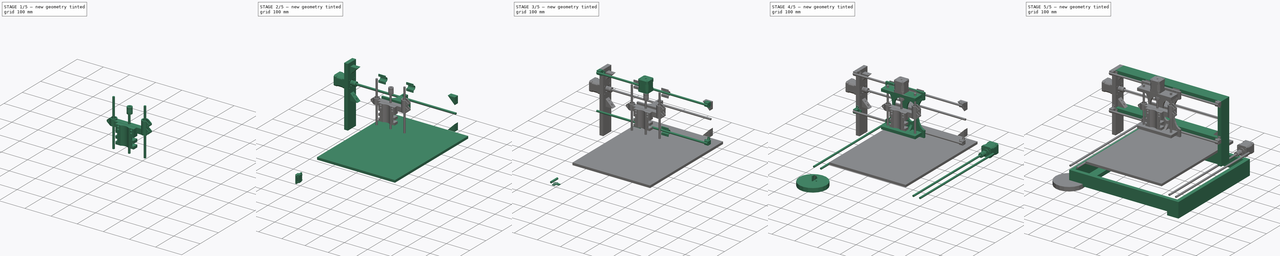
[diagram: build sequence overview — one tinted view per stage of 5, left to right]
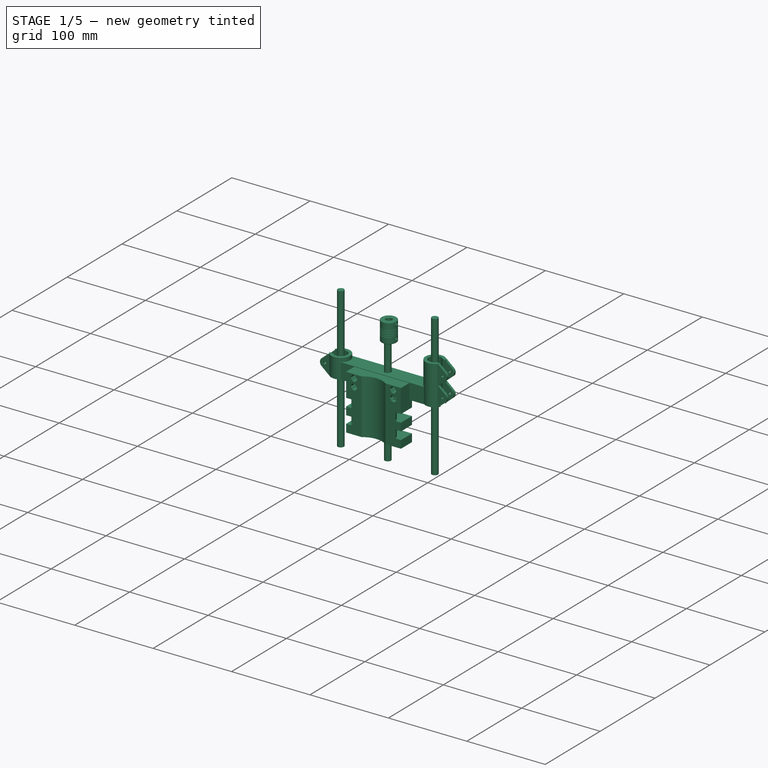
[diagram: stage 1 of 5 — iso view after this stage's code; geometry added in this stage tinted green]
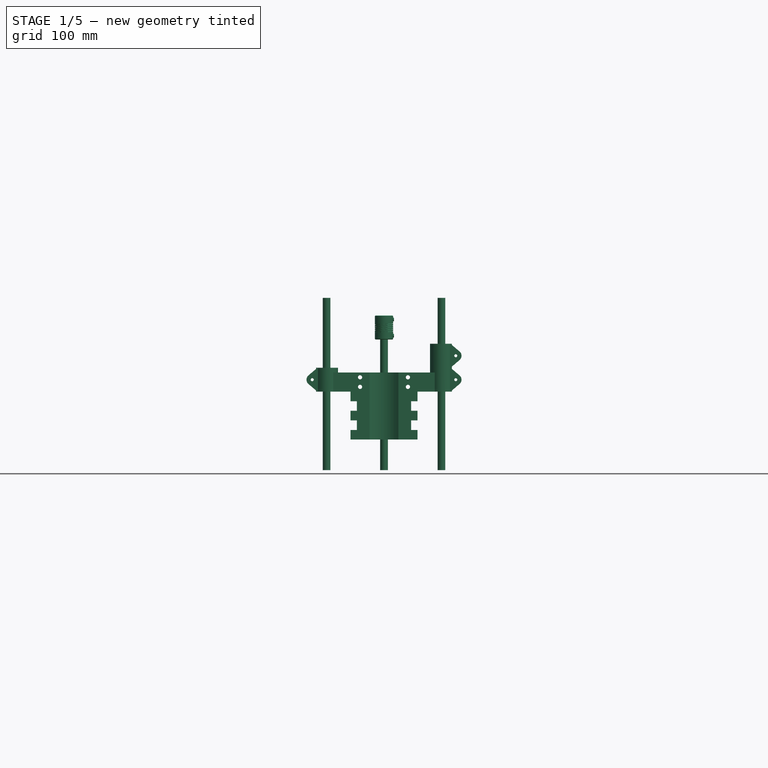
[diagram: stage 1 of 5 — front view after this stage's code; geometry added in this stage tinted green]
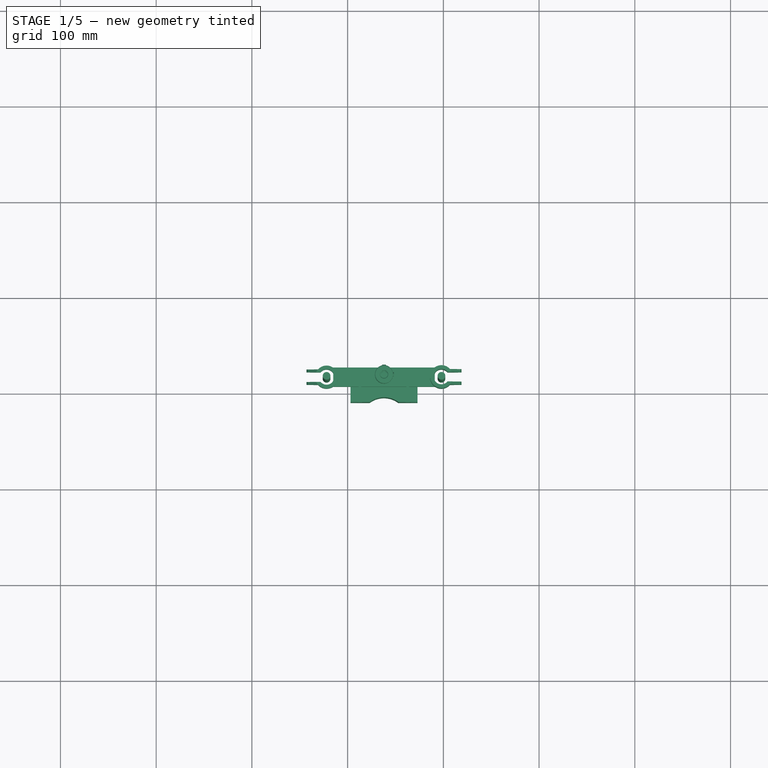
[diagram: stage 1 of 5 — top view after this stage's code; geometry added in this stage tinted green]
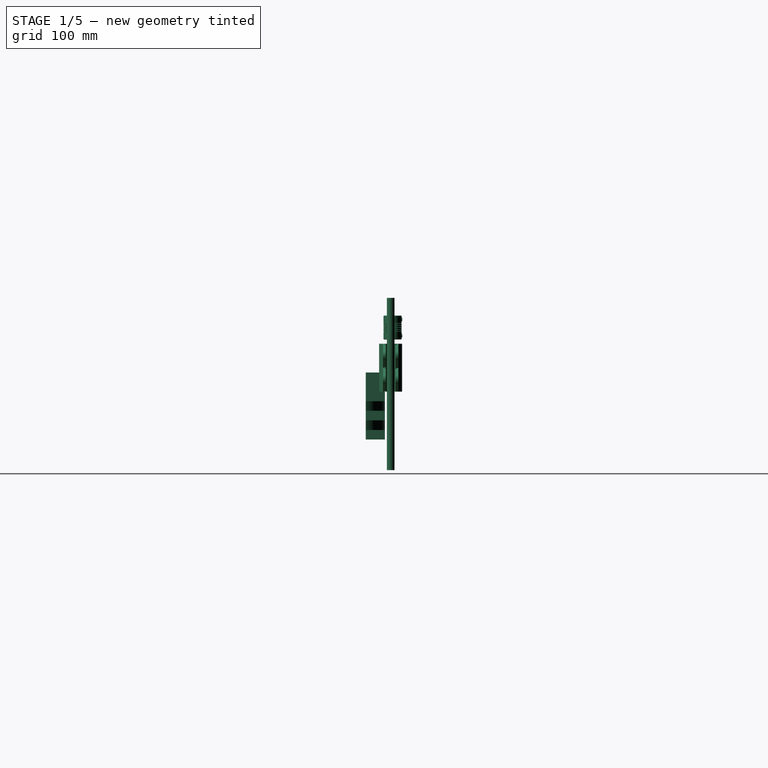
[diagram: stage 1 of 5 — right view after this stage's code; geometry added in this stage tinted green]
FCSTD DOCUMENT  (FreeCAD 0.15R4671 (Git))
Label: MaduixaCNC
License: CC-BY 3.0
LicenseURL: http://creativecommons.org/licenses/by/3.0/
objects: Part::Box×122, Part::Prism×118, Part::Feature×80, Part::Cut×70, Part::MultiFuse×55, Part::Cylinder×51, Part::FeaturePython×29, Part::Fuse×13, App::DocumentObjectGroup×11, Part::Mirroring×3, Sketcher::SketchObject×1, PartDesign::Pocket×1, Part::Cone×1
note: 545 computed .brp shape members not serialized (recipe doc carries the construction recipe); baked Part::Feature solids carry a one-line shape summary decoded from their .brp

FEATURE [App::DocumentObjectGroup] Group014  label="Safata"
  Group = -> [Part__Feature048,Part__Feature049,Part__Feature050,Part__Feature051,Box010]
FEATURE [Part::Box] cube093
  Height = 70
  Length = 70
  Placement = pos=(-35,-10,-35) rot=(0,0,1;0rad)
  Width = 20
FEATURE [Part::Box] cube094
  Height = 20
  Length = 70
  Placement = pos=(-35,-15,-35) rot=(0,0,1;0rad)
  Width = 10
FEATURE [Part::Cylinder] cylinder022
  Angle = 360
  Height = 80
  Placement = pos=(0,30,-40) rot=(0,0,1;0rad)
  Radius = 25
FEATURE [Part::Cylinder] cylinder023
  Angle = 360
  Height = 10
  Placement = pos=(0,20,-5) rot=(0,0,1;0rad)
  Radius = 60
FEATURE [Part::Cylinder] cylinder024
  Angle = 360
  Height = 11
  Placement = pos=(0,20,-5.5) rot=(0,0,1;0rad)
  Radius = 30
FEATURE [Part::Cut] difference056
  Base = -> cylinder023
  Tool = -> cylinder024
FEATURE [Part::Cylinder] cylinder025
  Angle = 360
  Height = 10
  Placement = pos=(0,20,15) rot=(0,0,1;0rad)
  Radius = 60
FEATURE [Part::Cylinder] cylinder026
  Angle = 360
  Height = 11
  Placement = pos=(0,20,14.5) rot=(0,0,1;0rad)
  Radius = 30
FEATURE [Part::Cut] difference057
  Base = -> cylinder025
  Tool = -> cylinder026
FEATURE [Part::Prism] prism098
  Circumradius = 2.2
  Height = 30
  Placement = pos=(25,15,-20) rot=(1,0,0;1.5708rad)
  Polygon = 20
FEATURE [Part::Prism] prism099
  Circumradius = 4.1
  Height = 10
  Placement = pos=(25,15,-20) rot=(1,0,0;1.5708rad)
  Polygon = 6
FEATURE [Part::Prism] prism100
  Circumradius = 2.2
  Height = 30
  Placement = pos=(25,15,-30) rot=(1,0,0;1.5708rad)
  Polygon = 20
FEATURE [Part::Prism] prism101
  Circumradius = 4.1
  Height = 15
  Placement = pos=(25,17.5,-30) rot=(1,0,0;1.5708rad)
  Polygon = 6
FEATURE [Part::Prism] prism102
  Circumradius = 2.2
  Height = 30
  Placement = pos=(-25,15,-20) rot=(1,0,0;1.5708rad)
  Polygon = 20
FEATURE [Part::Prism] prism103
  Circumradius = 4.1
  Height = 15
  Placement = pos=(-25,17.5,-20) rot=(1,0,0;1.5708rad)
  Polygon = 6
FEATURE [Part::Prism] prism104
  Circumradius = 2.2
  Height = 30
  Placement = pos=(-25,15,-30) rot=(1,0,0;1.5708rad)
  Polygon = 20
FEATURE [Part::Prism] prism105
  Circumradius = 4.1
  Height = 15
  Placement = pos=(-25,17.5,-30) rot=(1,0,0;1.5708rad)
  Polygon = 6
FEATURE [Part::MultiFuse] union045
  Shapes = -> [cube094,cylinder022,difference056,difference057,prism098,prism099,prism100,prism101,prism102,prism103,prism104,prism105]
FEATURE [Part::Cut] difference058  label="tool holder"
  Base = -> cube093
  Placement = pos=(238,200,242) rot=(1,0,0;3.14159rad)
  Tool = -> union045
FEATURE [Part::Box] cube095
  Height = 20
  Length = 106
  Placement = pos=(-53,-10,-10) rot=(0,0,1;0rad)
  Width = 20
FEATURE [Part::Prism] prism106
  Circumradius = 2.2
  Height = 30
  Placement = pos=(25,15,5) rot=(1,0,0;1.5708rad)
  Polygon = 20
FEATURE [Part::Prism] prism107
  Circumradius = 2.2
  Height = 30
  Placement = pos=(-25,15,5) rot=(1,0,0;1.5708rad)
  Polygon = 20
FEATURE [Part::Prism] prism108
  Circumradius = 2.2
  Height = 30
  Placement = pos=(25,15,-5) rot=(1,0,0;1.5708rad)
  Polygon = 20
FEATURE [Part::Prism] prism109
  Circumradius = 2.2
  Height = 30
  Placement = pos=(-25,15,-5) rot=(1,0,0;1.5708rad)
  Polygon = 20
FEATURE [Part::Cylinder] cylinder027
  Angle = 360
  Height = 26
  Placement = pos=(0,0,-13) rot=(0,0,1;0rad)
  Radius = 4.2
FEATURE [Part::Prism] prism110
  Circumradius = 7.5
  Height = 6.5
  Placement = pos=(0,0,-3.25) rot=(0,0,1;0rad)
  Polygon = 6
FEATURE [Part::Prism] prism111
  Circumradius = 7.5
  Height = 6.5
  Placement = pos=(20,0,-3.25) rot=(0,0,1;0rad)
  Polygon = 6
FEATURE [Part::FeaturePython] hull002  # WARN: FeaturePython — macro-defined, semantics opaque (R4)
  Arguments = []
  Children = -> [prism110,prism111]
  Operation = hull
  Placement = pos=(0,0,0) rot=(0,0,1;1.5708rad)
FEATURE [Part::MultiFuse] union046
  Shapes = -> [prism106,prism107,prism108,prism109,cylinder027,hull002]
FEATURE [Part::Cut] difference059
  Base = -> cube095
  Tool = -> union046
FEATURE [Part::Cone] cylinder028
  Angle = 360
  Height = 6.6
  Placement = pos=(0,0,-3.3) rot=(0,0,1;0rad)
  Radius1 = 4.8
  Radius2 = 4.4
FEATURE [Part::Cylinder] cylinder029
  Angle = 360
  Height = 7
  Placement = pos=(0,0,-3.5) rot=(0,0,1;0rad)
  Radius = 4
FEATURE [Part::Cut] difference060
  Base = -> cylinder028
  Tool = -> cylinder029
FEATURE [Part::Cylinder] cylinder030
  Angle = 360
  Height = 25
  Placement = pos=(0,0,-12.5) rot=(0,0,1;0rad)
  Radius = 12
FEATURE [Part::Cylinder] cylinder031
  Angle = 360
  Height = 27
  Placement = pos=(0,0,-13.5) rot=(0,0,1;0rad)
  Radius = 8
FEATURE [Part::Box] cube096
  Height = 27
  Length = 20
  Placement = pos=(0,-5,-13.5) rot=(0,0,1;0rad)
  Width = 10
FEATURE [Part::Fuse] union047
  Base = -> cylinder031
  Tool = -> cube096
FEATURE [Part::Cut] difference061
  Base = -> cylinder030
  Tool = -> union047
FEATURE [Part::Box] cube097
  Height = 1
  Length = 1
  Placement = pos=(-6.5,-1.5,-12.5) rot=(0,0,1;0rad)
  Width = 3
FEATURE [Part::Cylinder] cylinder032
  Angle = 360
  Height = 3
  Placement = pos=(0,1.5,0) rot=(1,0,0;1.5708rad)
  Radius = 6
FEATURE [Part::Box] cube098
  Height = 1
  Length = 1
  Placement = pos=(-6.5,-1.5,11.5) rot=(0,0,1;0rad)
  Width = 3
FEATURE [Part::FeaturePython] hull003  # WARN: FeaturePython — macro-defined, semantics opaque (R4)
  Arguments = []
  Children = -> [cube097,cylinder032,cube098]
  Operation = hull
FEATURE [Part::Prism] prism112
  Circumradius = 1.6
  Height = 4
  Placement = pos=(0,2,0) rot=(1,0,0;1.5708rad)
  Polygon = 20
FEATURE [Part::Cut] difference062
  Base = -> hull003
  Placement = pos=(15,-6.5,0) rot=(0,0,1;0rad)
  Tool = -> prism112
FEATURE [Part::Box] cube099
  Height = 1
  Length = 1
  Placement = pos=(-6.5,-1.5,-12.5) rot=(0,0,1;0rad)
  Width = 3
FEATURE [Part::Cylinder] cylinder033
  Angle = 360
  Height = 3
  Placement = pos=(0,1.5,0) rot=(1,0,0;1.5708rad)
  Radius = 6
FEATURE [Part::Box] cube100
  Height = 1
  Length = 1
  Placement = pos=(-6.5,-1.5,11.5) rot=(0,0,1;0rad)
  Width = 3
FEATURE [Part::FeaturePython] hull004  # WARN: FeaturePython — macro-defined, semantics opaque (R4)
  Arguments = []
  Children = -> [cube099,cylinder033,cube100]
  Operation = hull
FEATURE [Part::Prism] prism113
  Circumradius = 1.6
  Height = 4
  Placement = pos=(0,2,0) rot=(1,0,0;1.5708rad)
  Polygon = 20
FEATURE [Part::Cut] difference063
  Base = -> hull004
  Placement = pos=(15,6.5,0) rot=(0,0,1;0rad)
  Tool = -> prism113
FEATURE [Part::MultiFuse] Group015
  Placement = pos=(60,0,2.5) rot=(0,0,1;0rad)
  Shapes = -> [difference061,difference062,difference063]
FEATURE [Part::Cylinder] cylinder034
  Angle = 360
  Height = 25
  Placement = pos=(0,0,-12.5) rot=(0,0,1;0rad)
  Radius = 12
FEATURE [Part::Cylinder] cylinder035
  Angle = 360
  Height = 27
  Placement = pos=(0,0,-13.5) rot=(0,0,1;0rad)
  Radius = 8
FEATURE [Part::Box] cube101
  Height = 27
  Length = 20
  Placement = pos=(0,-5,-13.5) rot=(0,0,1;0rad)
  Width = 10
FEATURE [Part::Fuse] union048
  Base = -> cylinder035
  Tool = -> cube101
FEATURE [Part::Cut] difference064
  Base = -> cylinder034
  Tool = -> union048
FEATURE [Part::Box] cube102
  Height = 1
  Length = 1
  Placement = pos=(-6.5,-1.5,-12.5) rot=(0,0,1;0rad)
  Width = 3
FEATURE [Part::Cylinder] cylinder036
  Angle = 360
  Height = 3
  Placement = pos=(0,1.5,0) rot=(1,0,0;1.5708rad)
  Radius = 6
FEATURE [Part::Box] cube103
  Height = 1
  Length = 1
  Placement = pos=(-6.5,-1.5,11.5) rot=(0,0,1;0rad)
  Width = 3
FEATURE [Part::FeaturePython] hull005  # WARN: FeaturePython — macro-defined, semantics opaque (R4)
  Arguments = []
  Children = -> [cube102,cylinder036,cube103]
  Operation = hull
FEATURE [Part::Prism] prism114
  Circumradius = 1.6
  Height = 4
  Placement = pos=(0,2,0) rot=(1,0,0;1.5708rad)
  Polygon = 20
FEATURE [Part::Cut] difference065
  Base = -> hull005
  Placement = pos=(15,-6.5,0) rot=(0,0,1;0rad)
  Tool = -> prism114
FEATURE [Part::Box] cube104
  Height = 1
  Length = 1
  Placement = pos=(-6.5,-1.5,-12.5) rot=(0,0,1;0rad)
  Width = 3
FEATURE [Part::Cylinder] cylinder037
  Angle = 360
  Height = 3
  Placement = pos=(0,1.5,0) rot=(1,0,0;1.5708rad)
  Radius = 6
FEATURE [Part::Box] cube105
  Height = 1
  Length = 1
  Placement = pos=(-6.5,-1.5,11.5) rot=(0,0,1;0rad)
  Width = 3
FEATURE [Part::FeaturePython] hull006  # WARN: FeaturePython — macro-defined, semantics opaque (R4)
  Arguments = []
  Children = -> [cube104,cylinder037,cube105]
  Operation = hull
FEATURE [Part::Prism] prism115
  Circumradius = 1.6
  Height = 4
  Placement = pos=(0,2,0) rot=(1,0,0;1.5708rad)
  Polygon = 20
FEATURE [Part::Cut] difference066
  Base = -> hull006
  Placement = pos=(15,6.5,0) rot=(0,0,1;0rad)
  Tool = -> prism115
FEATURE [Part::MultiFuse] Group016
  Placement = pos=(60,0,27.5) rot=(0,0,1;0rad)
  Shapes = -> [difference064,difference065,difference066]
FEATURE [Part::Cylinder] cylinder038
  Angle = 360
  Height = 25
  Placement = pos=(0,0,-12.5) rot=(0,0,1;0rad)
  Radius = 12
FEATURE [Part::Cylinder] cylinder039
  Angle = 360
  Height = 27
  Placement = pos=(0,0,-13.5) rot=(0,0,1;0rad)
  Radius = 8
FEATURE [Part::Box] cube106
  Height = 27
  Length = 20
  Placement = pos=(0,-5,-13.5) rot=(0,0,1;0rad)
  Width = 10
FEATURE [Part::Fuse] union049
  Base = -> cylinder039
  Tool = -> cube106
FEATURE [Part::Cut] difference067
  Base = -> cylinder038
  Tool = -> union049
FEATURE [Part::Box] cube107
  Height = 1
  Length = 1
  Placement = pos=(-6.5,-1.5,-12.5) rot=(0,0,1;0rad)
  Width = 3
FEATURE [Part::Cylinder] cylinder040
  Angle = 360
  Height = 3
  Placement = pos=(0,1.5,0) rot=(1,0,0;1.5708rad)
  Radius = 6
FEATURE [Part::Box] cube108
  Height = 1
  Length = 1
  Placement = pos=(-6.5,-1.5,11.5) rot=(0,0,1;0rad)
  Width = 3
FEATURE [Part::FeaturePython] hull007  # WARN: FeaturePython — macro-defined, semantics opaque (R4)
  Arguments = []
  Children = -> [cube107,cylinder040,cube108]
  Operation = hull
FEATURE [Part::Prism] prism116
  Circumradius = 1.6
  Height = 4
  Placement = pos=(0,2,0) rot=(1,0,0;1.5708rad)
  Polygon = 20
FEATURE [Part::Cut] difference068
  Base = -> hull007
  Placement = pos=(15,-6.5,0) rot=(0,0,1;0rad)
  Tool = -> prism116
FEATURE [Part::Box] cube109
  Height = 1
  Length = 1
  Placement = pos=(-6.5,-1.5,-12.5) rot=(0,0,1;0rad)
  Width = 3
FEATURE [Part::Cylinder] cylinder041
  Angle = 360
  Height = 3
  Placement = pos=(0,1.5,0) rot=(1,0,0;1.5708rad)
  Radius = 6
FEATURE [Part::Box] cube110
  Height = 1
  Length = 1
  Placement = pos=(-6.5,-1.5,11.5) rot=(0,0,1;0rad)
  Width = 3
FEATURE [Part::FeaturePython] hull008  # WARN: FeaturePython — macro-defined, semantics opaque (R4)
  Arguments = []
  Children = -> [cube109,cylinder041,cube110]
  Operation = hull
FEATURE [Part::Prism] prism117
  Circumradius = 1.6
  Height = 4
  Placement = pos=(0,2,0) rot=(1,0,0;1.5708rad)
  Polygon = 20
FEATURE [Part::Cut] difference069
  Base = -> hull008
  Placement = pos=(15,6.5,0) rot=(0,0,1;0rad)
  Tool = -> prism117
FEATURE [Part::MultiFuse] Group017
  Shapes = -> [difference067,difference068,difference069]
FEATURE [Part::Mirroring] mirr_Group002  label="mirrored Group017"
  Base = (0,0,0)
  Normal = (1,0,0)
  Placement = pos=(-60,0,2.5) rot=(0,0,1;0rad)
  Source = -> Group017
FEATURE [Part::MultiFuse] Group018  label="z-carriage"
  Placement = pos=(238,216,267) rot=(0,0,1;0rad)
  Shapes = -> [difference059,difference060,Group015,Group016,mirr_Group002]
FEATURE [Part::Cylinder] Cylinder007  label="varilla-llisa-8mm 005"
  Angle = 360
  Height = 180
  Placement = pos=(178,216,175) rot=(0,0,1;0rad)
  Radius = 4
FEATURE [Part::Cylinder] Cylinder008  label="varilla-llisa-8mm 006"
  Angle = 360
  Height = 180
  Placement = pos=(298,216,175) rot=(0,0,1;0rad)
  Radius = 4
FEATURE [Part::Cylinder] Cylinder009  label="varilla-roscada-M8x140"
  Angle = 360
  Height = 140
  Placement = pos=(238,216,175) rot=(0,0,1;0rad)
  Radius = 4
FEATURE [Part::Feature] Part__Feature060  label="Stepper Motor Flexible Coupling 6,35 x 8 mm015"
  shape: bbox 33 x 34.7 x 25 mm, 58 faces (baked)
FEATURE [Part::Feature] Part__Feature061  label="Stepper Motor Flexible Coupling 6,35 x 8 mm016"
  Placement = pos=(10.3812,-0.0698861,8.50051) rot=(0.002704,0.803358,-0.59549;3.1456rad)
  shape: bbox 5.011 x 4.019 x 4 mm, 15 faces (baked)
FEATURE [Part::Feature] Part__Feature062  label="Stepper Motor Flexible Coupling 6,35 x 8 mm017"
  Placement = pos=(0.0676127,10.0435,-8.50051) rot=(0.566364,-0.57019,-0.595076;2.07392rad)
  shape: bbox 4.019 x 5.011 x 4 mm, 15 faces (baked)
FEATURE [Part::Feature] Part__Feature063  label="Stepper Motor Flexible Coupling 6,35 x 8 mm018"
  Placement = pos=(0.0676127,10.0435,8.50051) rot=(-0.581818,0.585748,0.564258;4.16329rad)
  shape: bbox 4.019 x 5.011 x 4 mm, 15 faces (baked)
FEATURE [Part::Feature] Part__Feature064  label="Stepper Motor Flexible Coupling 6,35 x 8 mm019"
  Placement = pos=(10.3812,-0.0698861,-8.50051) rot=(-0.001224,-0.363523,0.931585;3.13532rad)
  shape: bbox 5.011 x 4.019 x 4 mm, 15 faces (baked)
FEATURE [Part::MultiFuse] Fusion007  label="coupling 004"
  Placement = pos=(238,218,324) rot=(0,0,1;0rad)
  Shapes = -> [Part__Feature060,Part__Feature061,Part__Feature062,Part__Feature063,Part__Feature064]
FEATURE [Part::Feature] LM8UU_8mm_Linear_Bearing008  label="LM8UU_8mm_Linear_Bearing 009"
  Placement = pos=(298,216,307) rot=(0,1,0;1.5708rad)
  shape: bbox 15 x 15 x 24 mm, 34 faces (baked)
FEATURE [Part::Feature] LM8UU_8mm_Linear_Bearing009  label="LM8UU_8mm_Linear_Bearing 010"
  Placement = pos=(298,216,281) rot=(0,1,0;1.5708rad)
  shape: bbox 15 x 15 x 24 mm, 34 faces (baked)
FEATURE [Part::Feature] LM8UU_8mm_Linear_Bearing010  label="LM8UU_8mm_Linear_Bearing 011"
  Placement = pos=(178,216,281) rot=(0,1,0;1.5708rad)
  shape: bbox 15 x 15 x 24 mm, 34 faces (baked)
FEATURE [App::DocumentObjectGroup] Group019  label="Transmissio Eix Z"
  Group = -> [Cylinder007,Cylinder008,Cylinder009,Fusion007,LM8UU_8mm_Linear_Bearing008,LM8UU_8mm_Linear_Bearing009,LM8UU_8mm_Linear_Bearing010]
FEATURE [App::DocumentObjectGroup] Group020  label="peces-z"
  Group = -> [Group018,difference058]
FEATURE [Part::Feature] Part__Feature065  label="x-end-idler-CNC"
  Placement = pos=(466,295,265) rot=(0,-1,0;1.5708rad)
  shape: bbox 10 x 40.82 x 40.82 mm, 28 faces (baked)
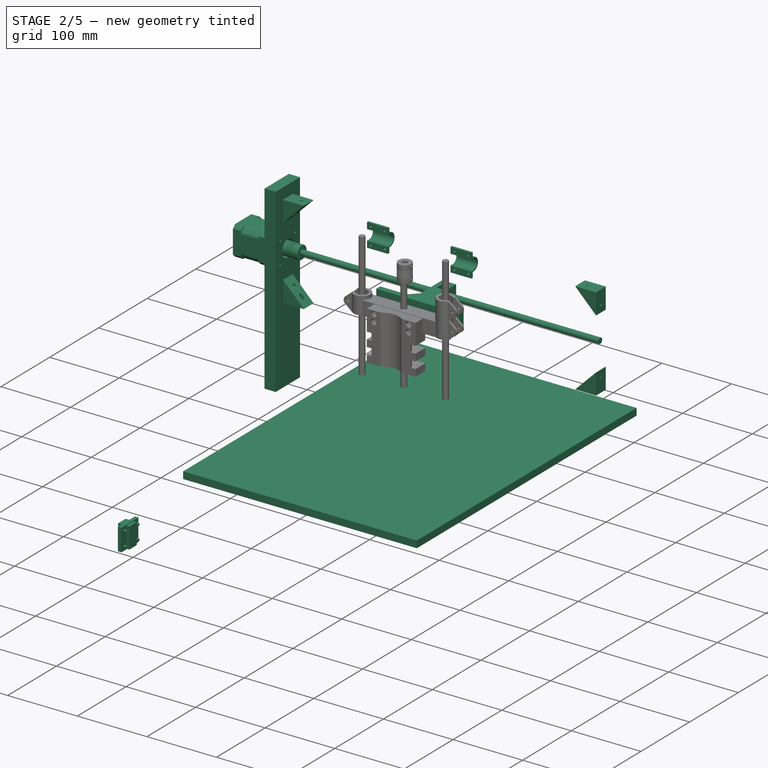
[diagram: stage 2 of 5 — iso view after this stage's code; geometry added in this stage tinted green]
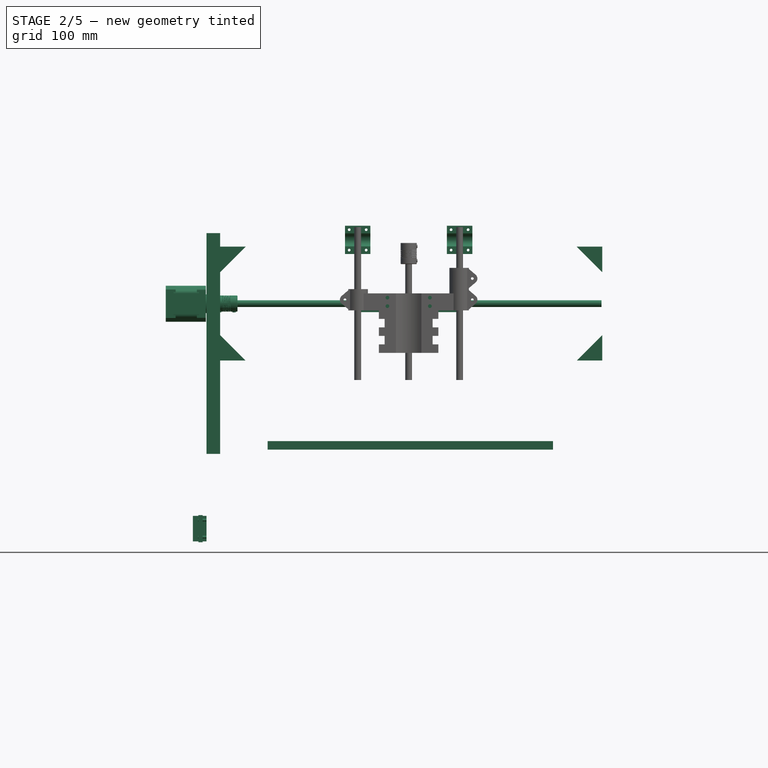
[diagram: stage 2 of 5 — front view after this stage's code; geometry added in this stage tinted green]
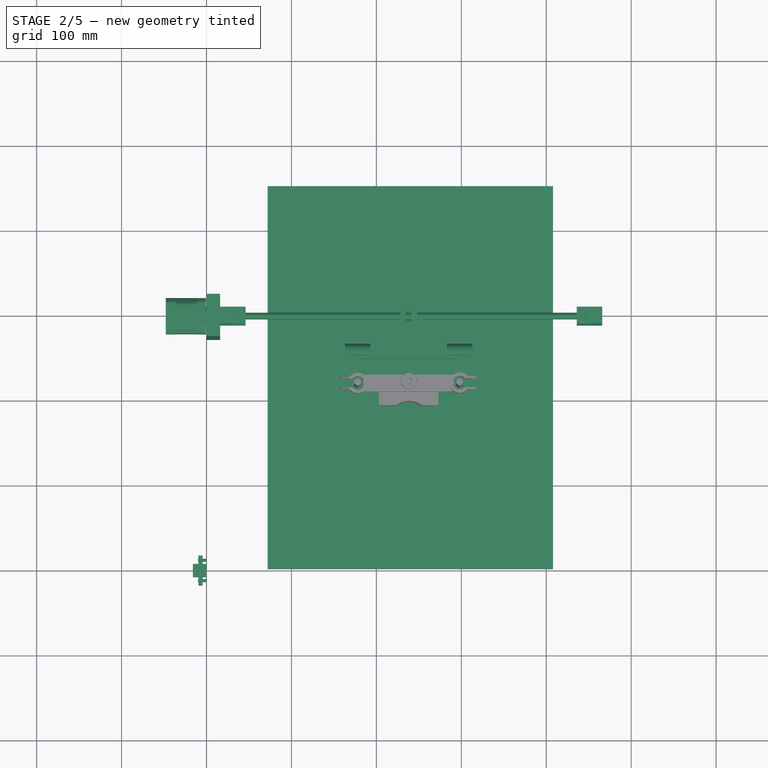
[diagram: stage 2 of 5 — top view after this stage's code; geometry added in this stage tinted green]
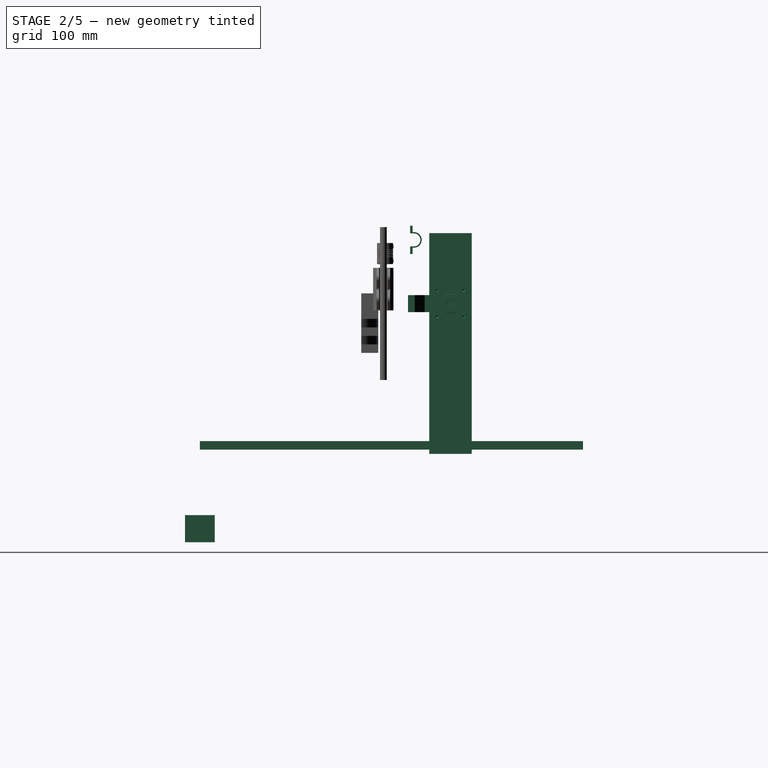
[diagram: stage 2 of 5 — right view after this stage's code; geometry added in this stage tinted green]
FEATURE [Part::Box] Box008  label="fusta 009"
  Height = 16
  Length = 260
  Placement = pos=(16,270,88) rot=(0,-1,0;1.5708rad)
  Width = 50
FEATURE [Part::Box] cube069
  Height = 30
  Length = 16
  Placement = pos=(-16,-7.6,-15) rot=(0,0,1;0rad)
  Width = 15.2
FEATURE [Part::Prism] prism062
  Circumradius = 1.6
  Height = 10
  Placement = pos=(-10,12,10) rot=(0,1,0;1.5708rad)
  Polygon = 20
FEATURE [Part::Prism] prism063
  Circumradius = 1.6
  Height = 10
  Placement = pos=(-10,12,-10) rot=(0,1,0;1.5708rad)
  Polygon = 20
FEATURE [Part::Prism] prism064
  Circumradius = 1.6
  Height = 10
  Placement = pos=(-10,-12,10) rot=(0,1,0;1.5708rad)
  Polygon = 20
FEATURE [Part::Prism] prism065
  Circumradius = 1.6
  Height = 10
  Placement = pos=(-10,-12,-10) rot=(0,1,0;1.5708rad)
  Polygon = 20
FEATURE [Part::Box] cube070
  Height = 32
  Length = 5
  Placement = pos=(-9.5,-17.5,-16) rot=(0,0,1;0rad)
  Width = 35
FEATURE [Part::Cylinder] cylinder018
  Angle = 360
  Height = 30
  Placement = pos=(0,0,-15) rot=(0,0,1;0rad)
  Radius = 9.2
FEATURE [Part::Cylinder] cylinder019
  Angle = 360
  Height = 30
  Placement = pos=(0,0,-15) rot=(0,0,1;0rad)
  Radius = 7.6
FEATURE [Part::Cut] difference047
  Base = -> cylinder018
  Tool = -> cylinder019
FEATURE [Part::Box] cube071
  Height = 30
  Length = 3
  Placement = pos=(-4.5,4.95,-15) rot=(0,0,1;0rad)
  Width = 11.7
FEATURE [Part::Box] cube072
  Height = 30
  Length = 3
  Placement = pos=(-4.5,-16.65,-15) rot=(0,0,1;0rad)
  Width = 11.7
FEATURE [Part::Box] cube073
  Height = 30
  Length = 1.6
  Placement = pos=(-4.6,7.5,-15) rot=(0,0,1;0rad)
  Width = 1.6
FEATURE [Part::Box] cube074
  Height = 30
  Length = 1.6
  Placement = pos=(-4.6,-9.1,-15) rot=(0,0,1;0rad)
  Width = 1.6
FEATURE [Part::MultiFuse] union035
  Shapes = -> [difference047,cube071,cube072,cube073,cube074]
FEATURE [Part::Box] cube075
  Height = 30
  Length = 16
  Placement = pos=(-16,-7.6,-15) rot=(0,0,1;0rad)
  Width = 15.2
FEATURE [Part::Prism] prism066
  Circumradius = 1.6
  Height = 10
  Placement = pos=(-10,12,10) rot=(0,1,0;1.5708rad)
  Polygon = 20
FEATURE [Part::Prism] prism067
  Circumradius = 1.6
  Height = 10
  Placement = pos=(-10,12,-10) rot=(0,1,0;1.5708rad)
  Polygon = 20
FEATURE [Part::Prism] prism068
  Circumradius = 1.6
  Height = 10
  Placement = pos=(-10,-12,10) rot=(0,1,0;1.5708rad)
  Polygon = 20
FEATURE [Part::Prism] prism069
  Circumradius = 1.6
  Height = 10
  Placement = pos=(-10,-12,-10) rot=(0,1,0;1.5708rad)
  Polygon = 20
FEATURE [Part::Box] cube076
  Height = 32
  Length = 5
  Placement = pos=(-9.5,-17.5,-16) rot=(0,0,1;0rad)
  Width = 35
FEATURE [Part::MultiFuse] union036
  Shapes = -> [cube075,prism066,prism067,prism068,prism069,cube076]
FEATURE [Part::Cut] difference048  label="lm8uu holder 003"
  Base = -> union035
  Placement = pos=(178,252,340) rot=(0.57735,0.57735,0.57735;2.0944rad)
  Tool = -> union036
FEATURE [Part::Cylinder] cylinder020
  Angle = 360
  Height = 30
  Placement = pos=(0,0,-15) rot=(0,0,1;0rad)
  Radius = 9.2
FEATURE [Part::Cylinder] cylinder021
  Angle = 360
  Height = 30
  Placement = pos=(0,0,-15) rot=(0,0,1;0rad)
  Radius = 7.6
FEATURE [Part::Cut] difference049
  Base = -> cylinder020
  Tool = -> cylinder021
FEATURE [Part::Box] cube077
  Height = 30
  Length = 3
  Placement = pos=(-4.5,4.95,-15) rot=(0,0,1;0rad)
  Width = 11.7
FEATURE [Part::Box] cube078
  Height = 30
  Length = 3
  Placement = pos=(-4.5,-16.65,-15) rot=(0,0,1;0rad)
  Width = 11.7
FEATURE [Part::Box] cube079
  Height = 30
  Length = 1.6
  Placement = pos=(-4.6,7.5,-15) rot=(0,0,1;0rad)
  Width = 1.6
FEATURE [Part::Box] cube080
  Height = 30
  Length = 1.6
  Placement = pos=(-4.6,-9.1,-15) rot=(0,0,1;0rad)
  Width = 1.6
FEATURE [Part::MultiFuse] union037
  Shapes = -> [difference049,cube077,cube078,cube079,cube080]
FEATURE [Part::Box] cube081
  Height = 30
  Length = 16
  Placement = pos=(-16,-7.6,-15) rot=(0,0,1;0rad)
  Width = 15.2
FEATURE [Part::Prism] prism070
  Circumradius = 1.6
  Height = 10
  Placement = pos=(-10,12,10) rot=(0,1,0;1.5708rad)
  Polygon = 20
FEATURE [Part::Prism] prism071
  Circumradius = 1.6
  Height = 10
  Placement = pos=(-10,12,-10) rot=(0,1,0;1.5708rad)
  Polygon = 20
FEATURE [Part::Prism] prism072
  Circumradius = 1.6
  Height = 10
  Placement = pos=(-10,-12,10) rot=(0,1,0;1.5708rad)
  Polygon = 20
FEATURE [Part::Prism] prism073
  Circumradius = 1.6
  Height = 10
  Placement = pos=(-10,-12,-10) rot=(0,1,0;1.5708rad)
  Polygon = 20
FEATURE [Part::Box] cube082
  Height = 32
  Length = 5
  Placement = pos=(-9.5,-17.5,-16) rot=(0,0,1;0rad)
  Width = 35
FEATURE [Part::MultiFuse] union038
  Shapes = -> [cube081,prism070,prism071,prism072,prism073,cube082]
FEATURE [Part::Cut] difference050  label="lm8uu holder 004"
  Base = -> union037
  Placement = pos=(298,252,340) rot=(0.57735,0.57735,0.57735;2.0944rad)
  Tool = -> union038
FEATURE [Part::Box] cube083
  Height = 20
  Length = 60
  Placement = pos=(0,-10,-10) rot=(0,0,1;0rad)
  Width = 20
FEATURE [Part::Box] cube084
  Height = 20
  Length = 8
  Placement = pos=(-4,-60,-10) rot=(0,0,1;0rad)
  Width = 120
FEATURE [Part::Fuse] union039
  Base = -> cube083
  Tool = -> cube084
FEATURE [Part::Prism] prism074
  Circumradius = 1.6
  Height = 50
  Placement = pos=(-25,51.5,0) rot=(0,1,0;1.5708rad)
  Polygon = 100
FEATURE [Part::Prism] prism075
  Circumradius = 1.6
  Height = 50
  Placement = pos=(-25,-51.5,0) rot=(0,1,0;1.5708rad)
  Polygon = 100
FEATURE [Part::Prism] prism076
  Circumradius = 4.2
  Height = 50
  Placement = pos=(46,25,0) rot=(1,0,0;1.5708rad)
  Polygon = 100
FEATURE [Part::Prism] prism077
  Circumradius = 7.5
  Height = 7
  Placement = pos=(0,0,-3.5) rot=(0,0,1;0rad)
  Polygon = 6
FEATURE [Part::Prism] prism078
  Circumradius = 7.5
  Height = 7
  Placement = pos=(10,0,-3.5) rot=(0,0,1;0rad)
  Polygon = 6
FEATURE [Part::FeaturePython] hull  # WARN: FeaturePython — macro-defined, semantics opaque (R4)
  Arguments = []
  Children = -> [prism077,prism078]
  Operation = hull
  Placement = pos=(46,0,9) rot=(0.57735,0.57735,-0.57735;2.0944rad)
FEATURE [Part::MultiFuse] union040
  Shapes = -> [prism074,prism075,prism076,hull]
FEATURE [Part::Cut] difference051
  Base = -> union039
  Tool = -> union040
FEATURE [Part::Prism] prism079
  Circumradius = 4
  Height = 20
  Placement = pos=(20,0,-10) rot=(0,0,1;0rad)
  Polygon = 20
FEATURE [Part::Prism] prism080
  Circumradius = 4
  Height = 20
  Placement = pos=(0,20,-10) rot=(0,0,1;0rad)
  Polygon = 20
FEATURE [Part::Prism] prism081
  Circumradius = 4
  Height = 20
  Placement = pos=(0,-20,-10) rot=(0,0,1;0rad)
  Polygon = 20
FEATURE [Part::FeaturePython] hull001  # WARN: FeaturePython — macro-defined, semantics opaque (R4)
  Arguments = []
  Children = -> [prism079,prism080,prism081]
  Operation = hull
FEATURE [Part::Fuse] Group013  label="x-transmisor"
  Base = -> difference051
  Placement = pos=(238,249,265) rot=(0,0,1;1.5708rad)
  Tool = -> hull001
FEATURE [Part::Cylinder] Cylinder006  label="varilla rosacada M8x435 003"
  Angle = 360
  Height = 430
  Placement = pos=(35,295,265) rot=(0,1,0;1.5708rad)
  Radius = 4
FEATURE [Part::Feature] Part__Feature035  label="NEMA 17 Stepper Motor Assembly016"
  Placement = pos=(-0.859097,0.164169,0.3418) rot=(0,0,1;0rad)
  shape: bbox 42.3 x 30 x 42.3 mm, 100 faces (baked)
FEATURE [Part::Feature] Part__Feature036  label="NEMA 17 Stepper Motor Assembly017"
  Placement = pos=(-0.859097,12.6642,0.3418) rot=(0,0,1;0rad)
  shape: bbox 42.3 x 12.6 x 42.3 mm, 69 faces (baked)
FEATURE [Part::Feature] Part__Feature037  label="NEMA 17 Stepper Motor Assembly018"
  Placement = pos=(-0.859097,-24.0358,0.3418) rot=(0,0,1;0rad)
  shape: bbox 42.3 x 11.7 x 42.3 mm, 47 faces (baked)
FEATURE [Part::Feature] Part__Feature038  label="NEMA 17 Stepper Motor Assembly019"
  Placement = pos=(-0.859097,14.1142,0.3418) rot=(0,0,1;0rad)
  shape: bbox 5.413 x 70.3 x 5.413 mm, 18 faces (baked)
FEATURE [Part::Feature] Part__Feature039  label="NEMA 17 Stepper Motor Assembly020"
  Placement = pos=(14.1409,-24.0358,15.3418) rot=(0.579273,0.579273,-0.573485;4.18298rad)
  shape: bbox 5.412 x 15.1 x 5.412 mm, 23 faces (baked)
FEATURE [Part::Feature] Part__Feature040  label="NEMA 17 Stepper Motor Assembly021"
  Placement = pos=(14.1409,-24.0358,-14.6582) rot=(-0.122131,-0.122131,0.984971;1.58594rad)
  shape: bbox 5.248 x 15.1 x 5.547 mm, 23 faces (baked)
FEATURE [Part::Feature] Part__Feature041  label="NEMA 17 Stepper Motor Assembly022"
  Placement = pos=(-15.8591,-24.0358,-14.6582) rot=(-0.122131,-0.122131,0.984971;1.58594rad)
  shape: bbox 5.248 x 15.1 x 5.547 mm, 23 faces (baked)
FEATURE [Part::Feature] Part__Feature042  label="NEMA 17 Stepper Motor Assembly023"
  Placement = pos=(-15.8591,-24.0358,15.3418) rot=(-0.122131,-0.122131,0.984971;1.58594rad)
  shape: bbox 5.248 x 15.1 x 5.547 mm, 23 faces (baked)
FEATURE [Part::MultiFuse] Fusion004  label="MotorNEMA17 003"
  Placement = pos=(-24,294,264.5) rot=(0,0,-1;1.5708rad)
  Shapes = -> [Part__Feature035,Part__Feature036,Part__Feature037,Part__Feature038,Part__Feature039,Part__Feature040,Part__Feature041,Part__Feature042]
FEATURE [App::DocumentObjectGroup] Group005  label="Motors"
  Group = -> [Fusion,Fusion001,Fusion004]
FEATURE [Part::Feature] Part__Feature043  label="Stepper Motor Flexible Coupling 6,35 x 8 mm010"
  shape: bbox 33 x 34.7 x 25 mm, 58 faces (baked)
FEATURE [Part::Feature] Part__Feature044  label="Stepper Motor Flexible Coupling 6,35 x 8 mm011"
  Placement = pos=(10.3812,-0.0698861,8.50051) rot=(0.002704,0.803358,-0.59549;3.1456rad)
  shape: bbox 5.011 x 4.019 x 4 mm, 15 faces (baked)
FEATURE [Part::Feature] Part__Feature045  label="Stepper Motor Flexible Coupling 6,35 x 8 mm012"
  Placement = pos=(0.0676127,10.0435,-8.50051) rot=(0.566364,-0.57019,-0.595076;2.07392rad)
  shape: bbox 4.019 x 5.011 x 4 mm, 15 faces (baked)
FEATURE [Part::Feature] Part__Feature046  label="Stepper Motor Flexible Coupling 6,35 x 8 mm013"
  Placement = pos=(0.0676127,10.0435,8.50051) rot=(-0.581818,0.585748,0.564258;4.16329rad)
  shape: bbox 4.019 x 5.011 x 4 mm, 15 faces (baked)
FEATURE [Part::Feature] Part__Feature047  label="Stepper Motor Flexible Coupling 6,35 x 8 mm014"
  Placement = pos=(10.3812,-0.0698861,-8.50051) rot=(-0.001224,-0.363523,0.931585;3.13532rad)
  shape: bbox 5.011 x 4.019 x 4 mm, 15 faces (baked)
FEATURE [Part::MultiFuse] Fusion005  label="coupling 003"
  Placement = pos=(24,295,265) rot=(0,1,0;1.5708rad)
  Shapes = -> [Part__Feature043,Part__Feature044,Part__Feature045,Part__Feature046,Part__Feature047]
FEATURE [App::DocumentObjectGroup] Group012  label="transmissio Eix X"
  Group = -> [Cylinder004,Cylinder005,LM8UU_8mm_Linear_Bearing004,LM8UU_8mm_Linear_Bearing005,LM8UU_8mm_Linear_Bearing006,LM8UU_8mm_Linear_Bearing007,Cylinder006,Fusion005]
FEATURE [Sketcher::SketchObject] Sketch
  ExternalGeometry = -> [Box008]
  Placement = pos=(16,270,88) rot=(0.707107,0,0.707107;3.14159rad)
  Support = -> Box008 [Face5]
  sketch-geometry (7):
    g0: Circle CenterX=177 CenterY=-25 CenterZ=0 NormalX=0 NormalY=0 NormalZ=1 Radius=12
    g1: Circle CenterX=161.5 CenterY=-9.5 CenterZ=0 NormalX=0 NormalY=0 NormalZ=1 Radius=1.75
    g2: Circle CenterX=161.5 CenterY=-40.5 CenterZ=0 NormalX=0 NormalY=0 NormalZ=1 Radius=1.75
    g3: Circle CenterX=192.5 CenterY=-9.5 CenterZ=0 NormalX=0 NormalY=0 NormalZ=1 Radius=1.75
    g4: Circle CenterX=192.5 CenterY=-40.5 CenterZ=0 NormalX=0 NormalY=0 NormalZ=1 Radius=1.75
    g5: LineSegment [constr] StartX=0 StartY=-25 StartZ=0 EndX=260 EndY=-25 EndZ=0
    g6: LineSegment [constr] StartX=177 StartY=0 StartZ=0 EndX=177 EndY=-50 EndZ=0
  constraints (20):
    c: Radius(g0) = 12
    c: DistanceY(g0,g-3) = -25
    c: DistanceX(g0,g-3) = 83
    c: Equal(g5,g-3)
    c: PointOnObject(g0,g5)
    c: Horizontal(g5)
    c: Radius(g1) = 1.75
    c: Equal(g1,g2)
    c: Equal(g1,g3)
    c: Equal(g1,g4)
    c: Symmetric(g1,g2,g5)
    c: DistanceY(g1,g2) = -31
    c: Perpendicular(g5,g6)
    c: PointOnObject(g0,g6)
    c: Symmetric(g1,g3,g6)
    c: Symmetric(g3,g4,g5)
    c: DistanceX(g1,g3) = 31
    c: PointOnObject(g6,g-3)
    c: PointOnObject(g6,g-1)
    c: PointOnObject(g5,g-4)
FEATURE [PartDesign::Pocket] Pocket  label="fusta 009 amb forats"
  Length = 16
  Placement = pos=(16,270,88) rot=(0,-1,0;1.5708rad)
  Sketch = -> Sketch
  Type = 0
FEATURE [App::DocumentObjectGroup] Group002  label="Fustes Eix X"
  Group = -> [Box006,Box007,Box008,Box009,Pocket]
FEATURE [Part::Box] cube085
  Height = 20
  Length = 30
  Width = 30
FEATURE [Part::Box] cube086
  Height = 20
  Length = 60
  Placement = pos=(0,0,0) rot=(0,0,1;0.785398rad)
  Width = 30
FEATURE [Part::Prism] prism082
  Circumradius = 1.6
  Height = 30
  Placement = pos=(5,20,10) rot=(0,1,0;1.5708rad)
  Polygon = 10
FEATURE [Part::Prism] prism083
  Circumradius = 3
  Height = 10
  Placement = pos=(15,20,10) rot=(0,1,0;1.5708rad)
  Polygon = 10
FEATURE [Part::Prism] prism084
  Circumradius = 1.6
  Height = 30
  Placement = pos=(10,20,10) rot=(1,0,0;1.5708rad)
  Polygon = 10
FEATURE [Part::Prism] prism085
  Circumradius = 3
  Height = 10
  Placement = pos=(10,15,10) rot=(1,0,0;1.5708rad)
  Polygon = 10
FEATURE [Part::MultiFuse] union041
  Shapes = -> [cube086,prism082,prism083,prism084,prism085]
FEATURE [Part::Cut] difference052  label="corner2s 001"
  Base = -> cube085
  Placement = pos=(436,305,198) rot=(1,0,0;1.5708rad)
  Tool = -> union041
FEATURE [Part::Box] cube087
  Height = 20
  Length = 30
  Width = 30
FEATURE [Part::Box] cube088
  Height = 20
  Length = 60
  Placement = pos=(0,0,0) rot=(0,0,1;0.785398rad)
  Width = 30
FEATURE [Part::Prism] prism086
  Circumradius = 1.6
  Height = 30
  Placement = pos=(5,20,10) rot=(0,1,0;1.5708rad)
  Polygon = 10
FEATURE [Part::Prism] prism087
  Circumradius = 3
  Height = 10
  Placement = pos=(15,20,10) rot=(0,1,0;1.5708rad)
  Polygon = 10
FEATURE [Part::Prism] prism088
  Circumradius = 1.6
  Height = 30
  Placement = pos=(10,20,10) rot=(1,0,0;1.5708rad)
  Polygon = 10
FEATURE [Part::Prism] prism089
  Circumradius = 3
  Height = 10
  Placement = pos=(10,15,10) rot=(1,0,0;1.5708rad)
  Polygon = 10
FEATURE [Part::MultiFuse] union042
  Shapes = -> [cube088,prism086,prism087,prism088,prism089]
FEATURE [Part::Cut] difference053  label="corner2s 002"
  Base = -> cube087
  Placement = pos=(436,285,332) rot=(-1,0,0;1.5708rad)
  Tool = -> union042
FEATURE [Part::Box] cube089
  Height = 20
  Length = 30
  Width = 30
FEATURE [Part::Box] cube090
  Height = 20
  Length = 60
  Placement = pos=(0,0,0) rot=(0,0,1;0.785398rad)
  Width = 30
FEATURE [Part::Prism] prism090
  Circumradius = 1.6
  Height = 30
  Placement = pos=(5,20,10) rot=(0,1,0;1.5708rad)
  Polygon = 10
FEATURE [Part::Prism] prism091
  Circumradius = 3
  Height = 10
  Placement = pos=(15,20,10) rot=(0,1,0;1.5708rad)
  Polygon = 10
FEATURE [Part::Prism] prism092
  Circumradius = 1.6
  Height = 30
  Placement = pos=(10,20,10) rot=(1,0,0;1.5708rad)
  Polygon = 10
FEATURE [Part::Prism] prism093
  Circumradius = 3
  Height = 10
  Placement = pos=(10,15,10) rot=(1,0,0;1.5708rad)
  Polygon = 10
FEATURE [Part::MultiFuse] union043
  Shapes = -> [cube090,prism090,prism091,prism092,prism093]
FEATURE [Part::Cut] difference054  label="corner2s 003"
  Base = -> cube089
  Placement = pos=(16,305,228) rot=(0.57735,0.57735,-0.57735;2.0944rad)
  Tool = -> union043
FEATURE [Part::Box] cube091
  Height = 20
  Length = 30
  Width = 30
FEATURE [Part::Box] cube092
  Height = 20
  Length = 60
  Placement = pos=(0,0,0) rot=(0,0,1;0.785398rad)
  Width = 30
FEATURE [Part::Prism] prism094
  Circumradius = 1.6
  Height = 30
  Placement = pos=(5,20,10) rot=(0,1,0;1.5708rad)
  Polygon = 10
FEATURE [Part::Prism] prism095
  Circumradius = 3
  Height = 10
  Placement = pos=(15,20,10) rot=(0,1,0;1.5708rad)
  Polygon = 10
FEATURE [Part::Prism] prism096
  Circumradius = 1.6
  Height = 30
  Placement = pos=(10,20,10) rot=(1,0,0;1.5708rad)
  Polygon = 10
FEATURE [Part::Prism] prism097
  Circumradius = 3
  Height = 10
  Placement = pos=(10,15,10) rot=(1,0,0;1.5708rad)
  Polygon = 10
FEATURE [Part::MultiFuse] union044
  Shapes = -> [cube092,prism094,prism095,prism096,prism097]
FEATURE [Part::Cut] difference055  label="corner2s 004"
  Base = -> cube091
  Placement = pos=(16,285,302) rot=(-0.57735,-0.57735,-0.57735;2.0944rad)
  Tool = -> union044
FEATURE [App::DocumentObjectGroup] Group007  label="peces-x-axis"
  Group = -> [Group006,Group008,mirr_Group,Group010,mirr_Group001,difference044,difference046,difference048,difference050,Group013,difference052,difference053,difference054,difference055]
FEATURE [Part::Feature] Part__Feature048  label="suport-safata 001"
  Placement = pos=(60,18,50) rot=(0,1,0;1.5708rad)
  shape: bbox 33 x 22 x 73 mm, 68 faces (baked)
FEATURE [Part::Feature] Part__Feature049  label="suport-safata 002"
  Placement = pos=(420,-2,50) rot=(-0.707107,0,0.707107;3.14159rad)
  shape: bbox 33 x 22 x 73 mm, 68 faces (baked)
FEATURE [Part::Feature] Part__Feature050  label="suport-safata 003"
  Placement = pos=(60,452,50) rot=(0,1,0;1.5708rad)
  shape: bbox 33 x 22 x 73 mm, 68 faces (baked)
FEATURE [Part::Feature] Part__Feature051  label="suport-safata 004"
  Placement = pos=(420,432,50) rot=(-0.707107,0,0.707107;3.14159rad)
  shape: bbox 33 x 22 x 73 mm, 68 faces (baked)
FEATURE [Part::Box] Box010  label="fusta-safata"
  Height = 10
  Length = 336
  Placement = pos=(72,0,93) rot=(0,0,1;0rad)
  Width = 451
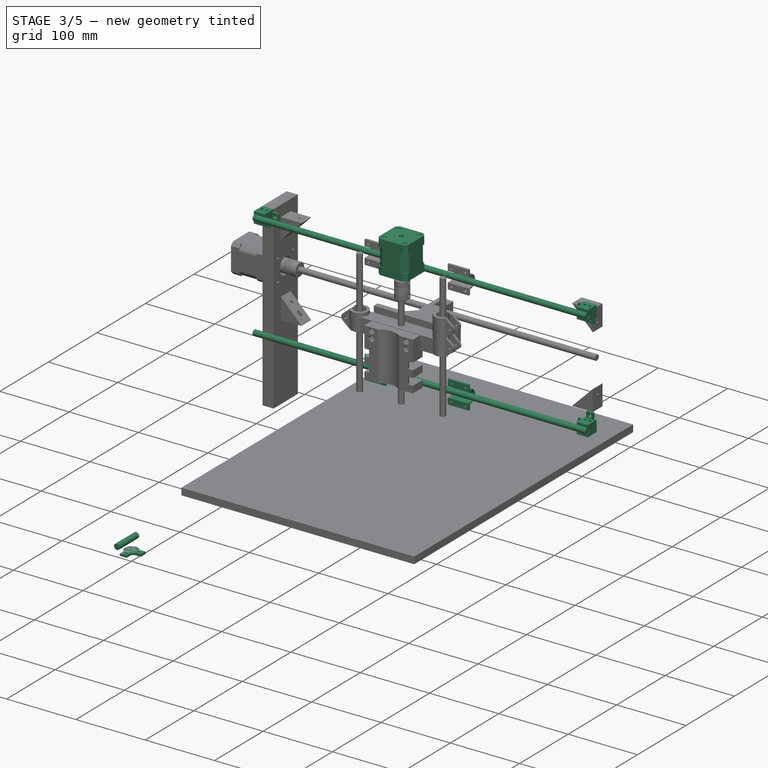
[diagram: stage 3 of 5 — iso view after this stage's code; geometry added in this stage tinted green]
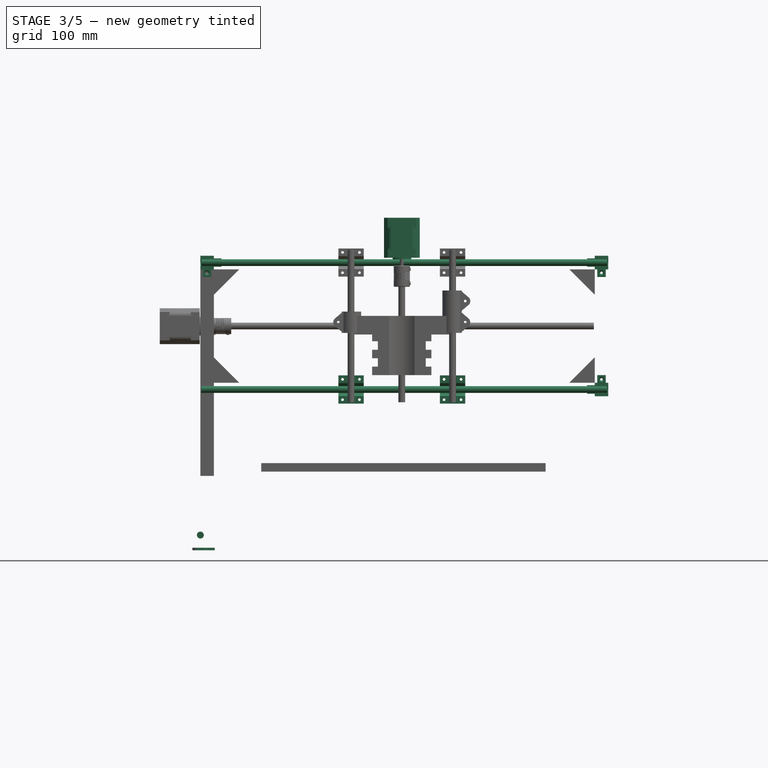
[diagram: stage 3 of 5 — front view after this stage's code; geometry added in this stage tinted green]
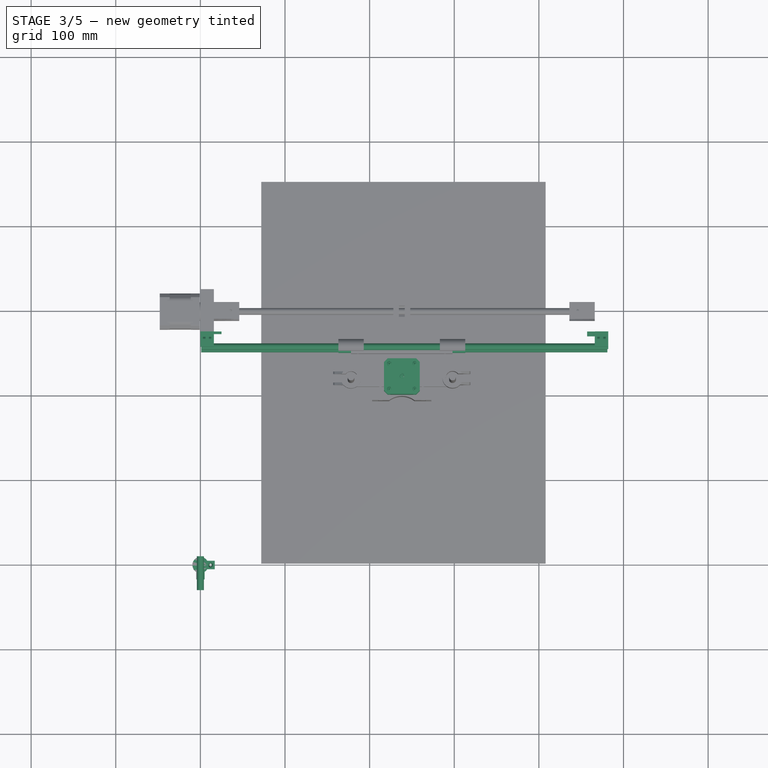
[diagram: stage 3 of 5 — top view after this stage's code; geometry added in this stage tinted green]
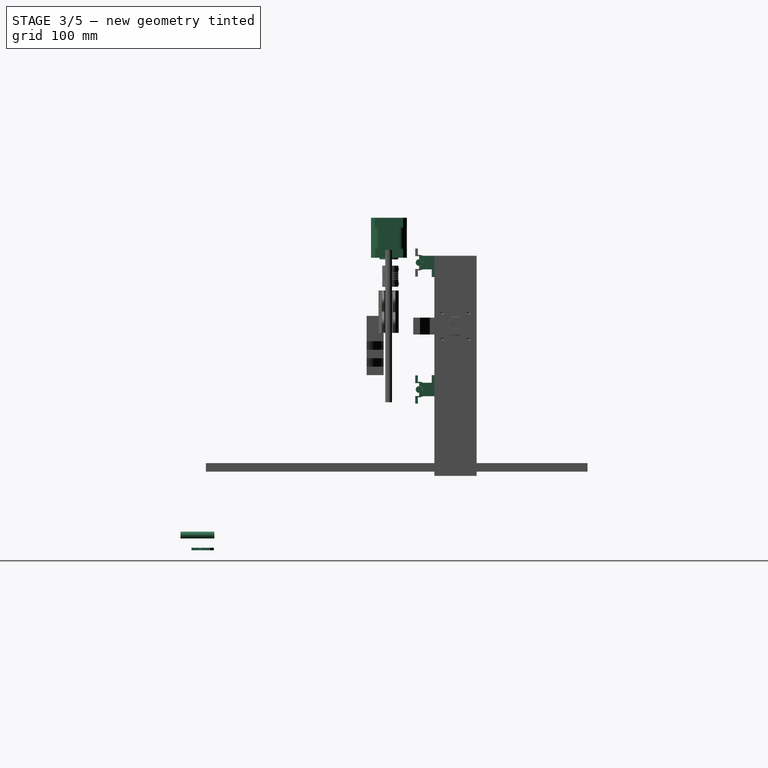
[diagram: stage 3 of 5 — right view after this stage's code; geometry added in this stage tinted green]
FEATURE [Part::Cylinder] Cylinder004  label="varilla-llisa-8mm-003"
  Angle = 360
  Height = 480
  Placement = pos=(1,252,190) rot=(0,1,0;1.5708rad)
  Radius = 4
FEATURE [Part::Cylinder] Cylinder005  label="varilla-llisa-8mm-004"
  Angle = 360
  Height = 480
  Placement = pos=(1,252,340) rot=(0,1,0;1.5708rad)
  Radius = 4
FEATURE [Part::Prism] prism041
  Circumradius = 9.5
  Height = 3
  Polygon = 100
FEATURE [Part::Prism] prism042
  Circumradius = 4.1
  Height = 40
  Placement = pos=(0,10,18) rot=(1,0,0;1.5708rad)
  Polygon = 100
FEATURE [Part::Box] cube048
  Height = 3
  Length = 10
  Placement = pos=(7,-5,0) rot=(0,0,1;0rad)
  Width = 10
FEATURE [Part::FeaturePython] frustum012  # WARN: FeaturePython — macro-defined, semantics opaque (R4)
  FacesNumber = 100
  Height = 3
  Placement = pos=(12,0,0) rot=(0,0,1;0rad)
  Radius1 = 1.5
  Radius2 = 2.9
FEATURE [Part::Cut] difference026
  Base = -> cube048
  Tool = -> frustum012
FEATURE [Part::Box] cube049
  Height = 3
  Length = 10
  Placement = pos=(-5,-17,0) rot=(0,0,1;0rad)
  Width = 10
FEATURE [Part::FeaturePython] frustum013  # WARN: FeaturePython — macro-defined, semantics opaque (R4)
  FacesNumber = 100
  Height = 3
  Placement = pos=(0,-12,0) rot=(0,0,1;0rad)
  Radius1 = 1.5
  Radius2 = 2.9
FEATURE [Part::Cut] difference027
  Base = -> cube049
  Tool = -> frustum013
FEATURE [Part::Box] cube050
  Height = 18
  Length = 16
  Placement = pos=(-8,-8,0) rot=(0,0,1;0rad)
  Width = 16
FEATURE [Part::Prism] prism043
  Circumradius = 11
  Height = 3
  Polygon = 100
FEATURE [Part::Prism] prism044
  Circumradius = 9.5
  Height = 3
  Polygon = 100
FEATURE [Part::Cut] difference028
  Base = -> prism043
  Placement = pos=(0,5,14) rot=(1,0,0;1.5708rad)
  Tool = -> prism044
FEATURE [Part::Prism] prism045
  Circumradius = 11
  Height = 3
  Polygon = 100
FEATURE [Part::Prism] prism046
  Circumradius = 9.5
  Height = 3
  Polygon = 100
FEATURE [Part::Cut] difference029
  Base = -> prism045
  Placement = pos=(0,-2,14) rot=(1,0,0;1.5708rad)
  Tool = -> prism046
FEATURE [Part::Fuse] union025
  Base = -> difference028
  Tool = -> difference029
FEATURE [Part::Prism] prism047
  Circumradius = 4.1
  Height = 40
  Placement = pos=(0,10,18) rot=(1,0,0;1.5708rad)
  Polygon = 100
FEATURE [Part::Fuse] union026
  Base = -> union025
  Tool = -> prism047
FEATURE [Part::Cut] difference030
  Base = -> cube050
  Tool = -> union026
FEATURE [Part::Box] cube051
  Height = 3
  Length = 10
  Placement = pos=(7,-5,0) rot=(0,0,1;0rad)
  Width = 10
FEATURE [Part::FeaturePython] frustum014  # WARN: FeaturePython — macro-defined, semantics opaque (R4)
  FacesNumber = 100
  Height = 3
  Placement = pos=(12,0,0) rot=(0,0,1;0rad)
  Radius1 = 1.5
  Radius2 = 2.9
FEATURE [Part::Cut] difference031
  Base = -> cube051
  Tool = -> frustum014
FEATURE [Part::Box] cube052
  Height = 3
  Length = 10
  Placement = pos=(-5,-17,0) rot=(0,0,1;0rad)
  Width = 10
FEATURE [Part::FeaturePython] frustum015  # WARN: FeaturePython — macro-defined, semantics opaque (R4)
  FacesNumber = 100
  Height = 3
  Placement = pos=(0,-12,0) rot=(0,0,1;0rad)
  Radius1 = 1.5
  Radius2 = 2.9
FEATURE [Part::Cut] difference032
  Base = -> cube052
  Tool = -> frustum015
FEATURE [Part::MultiFuse] Group009
  Shapes = -> [difference030,difference031,difference032]
FEATURE [Part::Mirroring] mirr_Group  label="x-axis-corner-B 001"
  Base = (0,0,0)
  Normal = (1,0,0)
  Placement = pos=(8,270,340) rot=(0.57735,-0.57735,0.57735;2.0944rad)
  Source = -> Group009
FEATURE [Part::Box] cube053
  Height = 18
  Length = 16
  Placement = pos=(-8,-8,0) rot=(0,0,1;0rad)
  Width = 16
FEATURE [Part::Prism] prism048
  Circumradius = 11
  Height = 3
  Polygon = 100
FEATURE [Part::Prism] prism049
  Circumradius = 9.5
  Height = 3
  Polygon = 100
FEATURE [Part::Cut] difference033
  Base = -> prism048
  Placement = pos=(0,5,14) rot=(1,0,0;1.5708rad)
  Tool = -> prism049
FEATURE [Part::Prism] prism050
  Circumradius = 11
  Height = 3
  Polygon = 100
FEATURE [Part::Prism] prism051
  Circumradius = 9.5
  Height = 3
  Polygon = 100
FEATURE [Part::Cut] difference034
  Base = -> prism050
  Placement = pos=(0,-2,14) rot=(1,0,0;1.5708rad)
  Tool = -> prism051
FEATURE [Part::Fuse] union027
  Base = -> difference033
  Tool = -> difference034
FEATURE [Part::Prism] prism052
  Circumradius = 4.1
  Height = 40
  Placement = pos=(0,10,18) rot=(1,0,0;1.5708rad)
  Polygon = 100
FEATURE [Part::Fuse] union028
  Base = -> union027
  Tool = -> prism052
FEATURE [Part::Cut] difference035
  Base = -> cube053
  Tool = -> union028
FEATURE [Part::Box] cube054
  Height = 3
  Length = 10
  Placement = pos=(7,-5,0) rot=(0,0,1;0rad)
  Width = 10
FEATURE [Part::FeaturePython] frustum016  # WARN: FeaturePython — macro-defined, semantics opaque (R4)
  FacesNumber = 100
  Height = 3
  Placement = pos=(12,0,0) rot=(0,0,1;0rad)
  Radius1 = 1.5
  Radius2 = 2.9
FEATURE [Part::Cut] difference036
  Base = -> cube054
  Tool = -> frustum016
FEATURE [Part::Box] cube055
  Height = 3
  Length = 10
  Placement = pos=(-5,-17,0) rot=(0,0,1;0rad)
  Width = 10
FEATURE [Part::FeaturePython] frustum017  # WARN: FeaturePython — macro-defined, semantics opaque (R4)
  FacesNumber = 100
  Height = 3
  Placement = pos=(0,-12,0) rot=(0,0,1;0rad)
  Radius1 = 1.5
  Radius2 = 2.9
FEATURE [Part::Cut] difference037
  Base = -> cube055
  Tool = -> frustum017
FEATURE [Part::MultiFuse] Group010  label="x-axis-corner-A 002"
  Placement = pos=(474,270,340) rot=(0.57735,0.57735,-0.57735;2.0944rad)
  Shapes = -> [difference035,difference036,difference037]
FEATURE [Part::Box] cube056
  Height = 18
  Length = 16
  Placement = pos=(-8,-8,0) rot=(0,0,1;0rad)
  Width = 16
FEATURE [Part::Prism] prism053
  Circumradius = 11
  Height = 3
  Polygon = 100
FEATURE [Part::Prism] prism054
  Circumradius = 9.5
  Height = 3
  Polygon = 100
FEATURE [Part::Cut] difference038
  Base = -> prism053
  Placement = pos=(0,5,14) rot=(1,0,0;1.5708rad)
  Tool = -> prism054
FEATURE [Part::Prism] prism055
  Circumradius = 11
  Height = 3
  Polygon = 100
FEATURE [Part::Prism] prism056
  Circumradius = 9.5
  Height = 3
  Polygon = 100
FEATURE [Part::Cut] difference039
  Base = -> prism055
  Placement = pos=(0,-2,14) rot=(1,0,0;1.5708rad)
  Tool = -> prism056
FEATURE [Part::Fuse] union029
  Base = -> difference038
  Tool = -> difference039
FEATURE [Part::Prism] prism057
  Circumradius = 4.1
  Height = 40
  Placement = pos=(0,10,18) rot=(1,0,0;1.5708rad)
  Polygon = 100
FEATURE [Part::Fuse] union030
  Base = -> union029
  Tool = -> prism057
FEATURE [Part::Cut] difference040
  Base = -> cube056
  Tool = -> union030
FEATURE [Part::Box] cube057
  Height = 3
  Length = 10
  Placement = pos=(7,-5,0) rot=(0,0,1;0rad)
  Width = 10
FEATURE [Part::FeaturePython] frustum018  # WARN: FeaturePython — macro-defined, semantics opaque (R4)
  FacesNumber = 100
  Height = 3
  Placement = pos=(12,0,0) rot=(0,0,1;0rad)
  Radius1 = 1.5
  Radius2 = 2.9
FEATURE [Part::Cut] difference041
  Base = -> cube057
  Tool = -> frustum018
FEATURE [Part::Box] cube058
  Height = 3
  Length = 10
  Placement = pos=(-5,-17,0) rot=(0,0,1;0rad)
  Width = 10
FEATURE [Part::FeaturePython] frustum019  # WARN: FeaturePython — macro-defined, semantics opaque (R4)
  FacesNumber = 100
  Height = 3
  Placement = pos=(0,-12,0) rot=(0,0,1;0rad)
  Radius1 = 1.5
  Radius2 = 2.9
FEATURE [Part::Cut] difference042
  Base = -> cube058
  Tool = -> frustum019
FEATURE [Part::MultiFuse] Group011
  Shapes = -> [difference040,difference041,difference042]
FEATURE [Part::Mirroring] mirr_Group001  label="x-axis-corner-B 002"
  Base = (0,0,0)
  Normal = (1,0,0)
  Placement = pos=(474,270,190) rot=(0.57735,0.57735,-0.57735;2.0944rad)
  Source = -> Group011
FEATURE [Part::Cylinder] cylinder014
  Angle = 360
  Height = 30
  Placement = pos=(0,0,-15) rot=(0,0,1;0rad)
  Radius = 9.2
FEATURE [Part::Cylinder] cylinder015
  Angle = 360
  Height = 30
  Placement = pos=(0,0,-15) rot=(0,0,1;0rad)
  Radius = 7.6
FEATURE [Part::Cut] difference043
  Base = -> cylinder014
  Tool = -> cylinder015
FEATURE [Part::Box] cube059
  Height = 30
  Length = 3
  Placement = pos=(-4.5,4.95,-15) rot=(0,0,1;0rad)
  Width = 11.7
FEATURE [Part::Box] cube060
  Height = 30
  Length = 3
  Placement = pos=(-4.5,-16.65,-15) rot=(0,0,1;0rad)
  Width = 11.7
FEATURE [Part::Box] cube061
  Height = 30
  Length = 1.6
  Placement = pos=(-4.6,7.5,-15) rot=(0,0,1;0rad)
  Width = 1.6
FEATURE [Part::Box] cube062
  Height = 30
  Length = 1.6
  Placement = pos=(-4.6,-9.1,-15) rot=(0,0,1;0rad)
  Width = 1.6
FEATURE [Part::MultiFuse] union031
  Shapes = -> [difference043,cube059,cube060,cube061,cube062]
FEATURE [Part::Box] cube063
  Height = 30
  Length = 16
  Placement = pos=(-16,-7.6,-15) rot=(0,0,1;0rad)
  Width = 15.2
FEATURE [Part::Prism] prism058
  Circumradius = 1.6
  Height = 10
  Placement = pos=(-10,12,10) rot=(0,1,0;1.5708rad)
  Polygon = 20
FEATURE [Part::Prism] prism059
  Circumradius = 1.6
  Height = 10
  Placement = pos=(-10,12,-10) rot=(0,1,0;1.5708rad)
  Polygon = 20
FEATURE [Part::Prism] prism060
  Circumradius = 1.6
  Height = 10
  Placement = pos=(-10,-12,10) rot=(0,1,0;1.5708rad)
  Polygon = 20
FEATURE [Part::Prism] prism061
  Circumradius = 1.6
  Height = 10
  Placement = pos=(-10,-12,-10) rot=(0,1,0;1.5708rad)
  Polygon = 20
FEATURE [Part::Box] cube064
  Height = 32
  Length = 5
  Placement = pos=(-9.5,-17.5,-16) rot=(0,0,1;0rad)
  Width = 35
FEATURE [Part::MultiFuse] union032
  Shapes = -> [cube063,prism058,prism059,prism060,prism061,cube064]
FEATURE [Part::Cut] difference044  label="lm8uu holder 001"
  Base = -> union031
  Placement = pos=(178,252,190) rot=(0.57735,0.57735,0.57735;2.0944rad)
  Tool = -> union032
FEATURE [Part::Feature] LM8UU_8mm_Linear_Bearing004  label="LM8UU_8mm_Linear_Bearing 005"
  Placement = pos=(166,252,190) rot=(0,0,1;0rad)
  shape: bbox 24 x 15 x 15 mm, 34 faces (baked)
FEATURE [Part::Feature] LM8UU_8mm_Linear_Bearing005  label="LM8UU_8mm_Linear_Bearing 006"
  Placement = pos=(285,252,190) rot=(0,0,1;0rad)
  shape: bbox 24 x 15 x 15 mm, 34 faces (baked)
FEATURE [Part::Feature] LM8UU_8mm_Linear_Bearing006  label="LM8UU_8mm_Linear_Bearing 007"
  Placement = pos=(166,252,340) rot=(0,0,1;0rad)
  shape: bbox 24 x 15 x 15 mm, 34 faces (baked)
FEATURE [Part::Feature] LM8UU_8mm_Linear_Bearing007  label="LM8UU_8mm_Linear_Bearing 008"
  Placement = pos=(285,252,340) rot=(0,0,1;0rad)
  shape: bbox 24 x 15 x 15 mm, 34 faces (baked)
FEATURE [Part::Cylinder] cylinder016
  Angle = 360
  Height = 30
  Placement = pos=(0,0,-15) rot=(0,0,1;0rad)
  Radius = 9.2
FEATURE [Part::Cylinder] cylinder017
  Angle = 360
  Height = 30
  Placement = pos=(0,0,-15) rot=(0,0,1;0rad)
  Radius = 7.6
FEATURE [Part::Cut] difference045
  Base = -> cylinder016
  Tool = -> cylinder017
FEATURE [Part::Box] cube065
  Height = 30
  Length = 3
  Placement = pos=(-4.5,4.95,-15) rot=(0,0,1;0rad)
  Width = 11.7
FEATURE [Part::Box] cube066
  Height = 30
  Length = 3
  Placement = pos=(-4.5,-16.65,-15) rot=(0,0,1;0rad)
  Width = 11.7
FEATURE [Part::Box] cube067
  Height = 30
  Length = 1.6
  Placement = pos=(-4.6,7.5,-15) rot=(0,0,1;0rad)
  Width = 1.6
FEATURE [Part::Box] cube068
  Height = 30
  Length = 1.6
  Placement = pos=(-4.6,-9.1,-15) rot=(0,0,1;0rad)
  Width = 1.6
FEATURE [Part::MultiFuse] union033
  Shapes = -> [difference045,cube065,cube066,cube067,cube068]
FEATURE [Part::MultiFuse] union034
  Shapes = -> [cube069,prism062,prism063,prism064,prism065,cube070]
FEATURE [Part::Cut] difference046  label="lm8uu holder 002"
  Base = -> union033
  Placement = pos=(298,252,190) rot=(0.57735,0.57735,0.57735;2.0944rad)
  Tool = -> union034
FEATURE [Part::Feature] Part__Feature052  label="NEMA 17 Stepper Motor Assembly024"
  Placement = pos=(-0.859097,0.164169,0.3418) rot=(0,0,1;0rad)
  shape: bbox 42.3 x 30 x 42.3 mm, 100 faces (baked)
FEATURE [Part::Feature] Part__Feature053  label="NEMA 17 Stepper Motor Assembly025"
  Placement = pos=(-0.859097,12.6642,0.3418) rot=(0,0,1;0rad)
  shape: bbox 42.3 x 12.6 x 42.3 mm, 69 faces (baked)
FEATURE [Part::Feature] Part__Feature054  label="NEMA 17 Stepper Motor Assembly026"
  Placement = pos=(-0.859097,-24.0358,0.3418) rot=(0,0,1;0rad)
  shape: bbox 42.3 x 11.7 x 42.3 mm, 47 faces (baked)
FEATURE [Part::Feature] Part__Feature055  label="NEMA 17 Stepper Motor Assembly027"
  Placement = pos=(-0.859097,14.1142,0.3418) rot=(0,0,1;0rad)
  shape: bbox 5.413 x 70.3 x 5.413 mm, 18 faces (baked)
FEATURE [Part::Feature] Part__Feature056  label="NEMA 17 Stepper Motor Assembly028"
  Placement = pos=(14.1409,-24.0358,15.3418) rot=(0.579273,0.579273,-0.573485;4.18298rad)
  shape: bbox 5.412 x 15.1 x 5.412 mm, 23 faces (baked)
FEATURE [Part::Feature] Part__Feature057  label="NEMA 17 Stepper Motor Assembly029"
  Placement = pos=(14.1409,-24.0358,-14.6582) rot=(-0.122131,-0.122131,0.984971;1.58594rad)
  shape: bbox 5.248 x 15.1 x 5.547 mm, 23 faces (baked)
FEATURE [Part::Feature] Part__Feature058  label="NEMA 17 Stepper Motor Assembly030"
  Placement = pos=(-15.8591,-24.0358,-14.6582) rot=(-0.122131,-0.122131,0.984971;1.58594rad)
  shape: bbox 5.248 x 15.1 x 5.547 mm, 23 faces (baked)
FEATURE [Part::Feature] Part__Feature059  label="NEMA 17 Stepper Motor Assembly031"
  Placement = pos=(-15.8591,-24.0358,15.3418) rot=(-0.122131,-0.122131,0.984971;1.58594rad)
  shape: bbox 5.248 x 15.1 x 5.547 mm, 23 faces (baked)
FEATURE [Part::MultiFuse] Fusion006  label="MotorNEMA17 004"
  Placement = pos=(239,216,369) rot=(-1,0,0;1.5708rad)
  Shapes = -> [Part__Feature052,Part__Feature053,Part__Feature054,Part__Feature055,Part__Feature056,Part__Feature057,Part__Feature058,Part__Feature059]
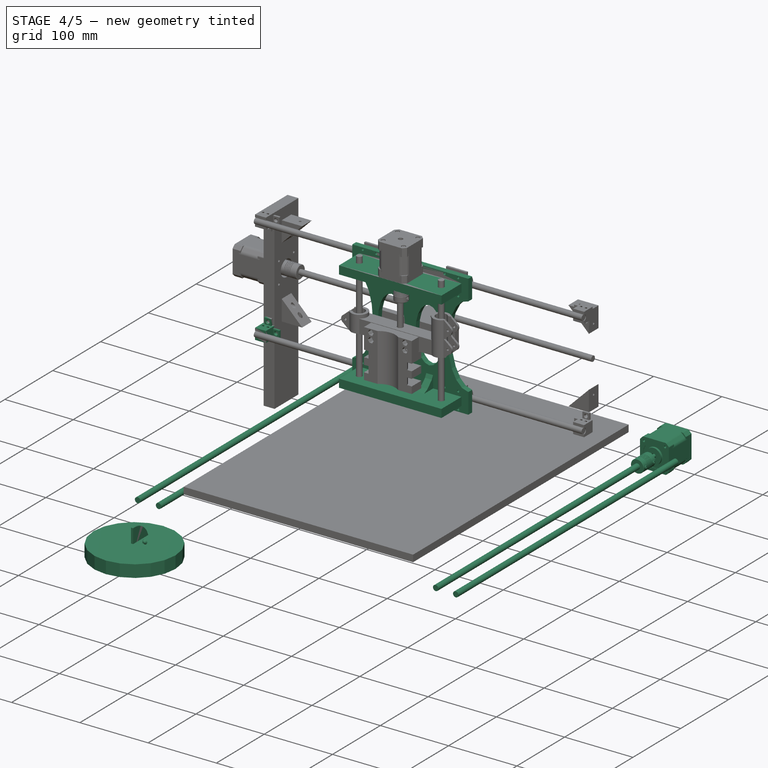
[diagram: stage 4 of 5 — iso view after this stage's code; geometry added in this stage tinted green]
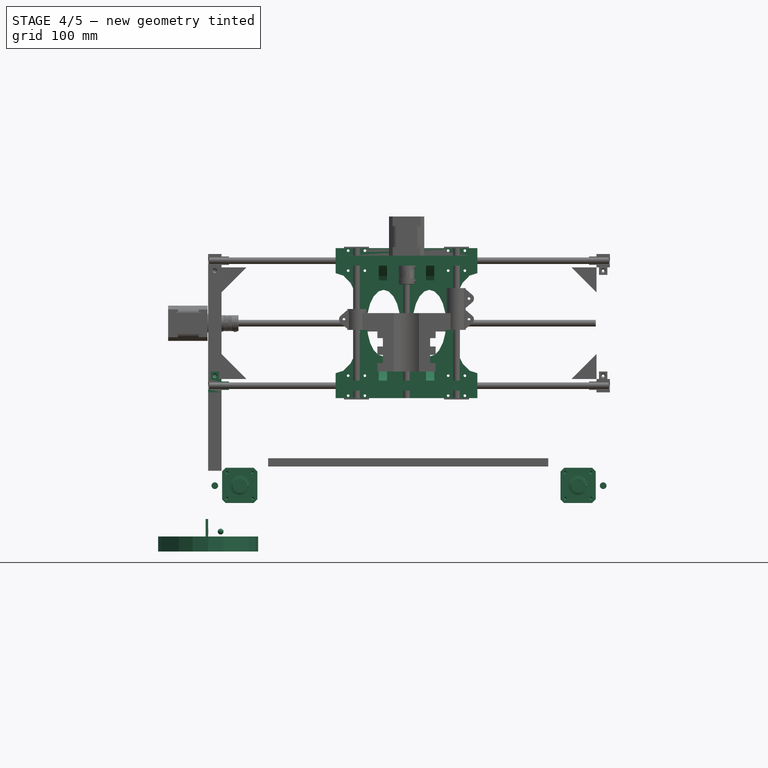
[diagram: stage 4 of 5 — front view after this stage's code; geometry added in this stage tinted green]
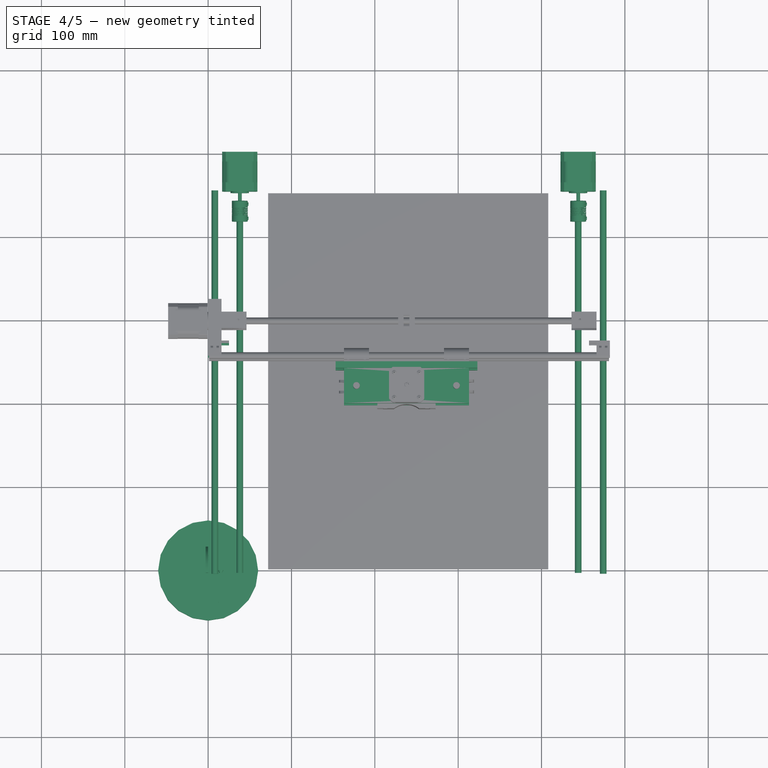
[diagram: stage 4 of 5 — top view after this stage's code; geometry added in this stage tinted green]
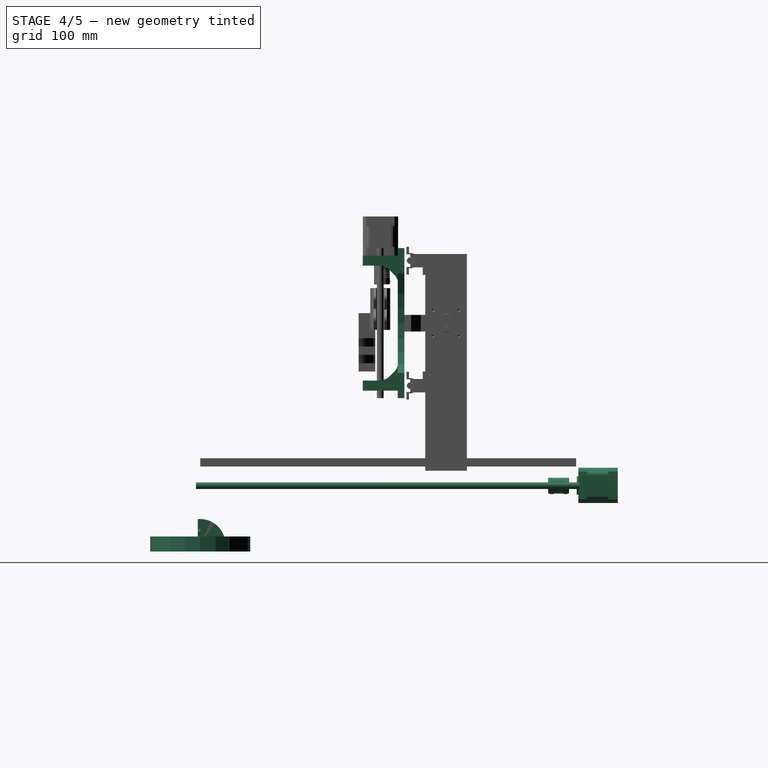
[diagram: stage 4 of 5 — right view after this stage's code; geometry added in this stage tinted green]
FEATURE [App::DocumentObjectGroup] Group  label="Fustes Base"
  Group = -> [Box,Box001,Box002,Box003,Box004,Box005]
FEATURE [Part::Feature] Part__Feature  label="y-end-idler-left"
  Placement = pos=(-3,-3,40) rot=(0,0.707107,0.707107;3.14159rad)
  shape: bbox 61 x 20 x 50 mm, 35 faces (baked)
FEATURE [Part::Feature] Part__Feature001  label="y-end-motor-left"
  Placement = pos=(-3,453,40) rot=(1,0,0;1.5708rad)
  shape: bbox 61 x 20 x 50 mm, 34 faces (baked)
FEATURE [Part::Feature] Part__Feature002  label="y-end-idler-right"
  Placement = pos=(485,-3,40) rot=(0,0.707107,0.707107;3.14159rad)
  shape: bbox 61 x 20 x 50 mm, 35 faces (baked)
FEATURE [Part::Feature] Part__Feature003  label="y-end-motor-right"
  Placement = pos=(485,453,40) rot=(1,0,0;1.5708rad)
  shape: bbox 61 x 20 x 50 mm, 34 faces (baked)
FEATURE [Part::Cylinder] Cylinder  label="varilla-llisa-8mm-001"
  Angle = 360
  Height = 460
  Placement = pos=(8,-5,70) rot=(-1,0,0;1.5708rad)
  Radius = 4
FEATURE [Part::Cylinder] Cylinder001  label="varilla-llisa-8mm-002"
  Angle = 360
  Height = 460
  Placement = pos=(474,-5,70) rot=(-1,0,0;1.5708rad)
  Radius = 4
FEATURE [Part::Feature] Part__Feature004  label="NEMA 17 Stepper Motor Assembly"
  Placement = pos=(-0.859097,0.164169,0.3418) rot=(0,0,1;0rad)
  shape: bbox 42.3 x 30 x 42.3 mm, 100 faces (baked)
FEATURE [Part::Feature] Part__Feature005  label="NEMA 17 Stepper Motor Assembly001"
  Placement = pos=(-0.859097,12.6642,0.3418) rot=(0,0,1;0rad)
  shape: bbox 42.3 x 12.6 x 42.3 mm, 69 faces (baked)
FEATURE [Part::Feature] Part__Feature006  label="NEMA 17 Stepper Motor Assembly002"
  Placement = pos=(-0.859097,-24.0358,0.3418) rot=(0,0,1;0rad)
  shape: bbox 42.3 x 11.7 x 42.3 mm, 47 faces (baked)
FEATURE [Part::Feature] Part__Feature007  label="NEMA 17 Stepper Motor Assembly003"
  Placement = pos=(-0.859097,14.1142,0.3418) rot=(0,0,1;0rad)
  shape: bbox 5.413 x 70.3 x 5.413 mm, 18 faces (baked)
FEATURE [Part::Feature] Part__Feature008  label="NEMA 17 Stepper Motor Assembly004"
  Placement = pos=(14.1409,-24.0358,15.3418) rot=(0.579273,0.579273,-0.573485;4.18298rad)
  shape: bbox 5.412 x 15.1 x 5.412 mm, 23 faces (baked)
FEATURE [Part::Feature] Part__Feature009  label="NEMA 17 Stepper Motor Assembly005"
  Placement = pos=(14.1409,-24.0358,-14.6582) rot=(-0.122131,-0.122131,0.984971;1.58594rad)
  shape: bbox 5.248 x 15.1 x 5.547 mm, 23 faces (baked)
FEATURE [Part::Feature] Part__Feature010  label="NEMA 17 Stepper Motor Assembly006"
  Placement = pos=(-15.8591,-24.0358,-14.6582) rot=(-0.122131,-0.122131,0.984971;1.58594rad)
  shape: bbox 5.248 x 15.1 x 5.547 mm, 23 faces (baked)
FEATURE [Part::Feature] Part__Feature011  label="NEMA 17 Stepper Motor Assembly007"
  Placement = pos=(-15.8591,-24.0358,15.3418) rot=(-0.122131,-0.122131,0.984971;1.58594rad)
  shape: bbox 5.248 x 15.1 x 5.547 mm, 23 faces (baked)
FEATURE [Part::MultiFuse] Fusion  label="MotorNEMA17 001"
  Placement = pos=(37,477,70) rot=(0,0,1;3.14159rad)
  Shapes = -> [Part__Feature004,Part__Feature005,Part__Feature006,Part__Feature007,Part__Feature008,Part__Feature009,Part__Feature010,Part__Feature011]
FEATURE [Part::Feature] Part__Feature012  label="NEMA 17 Stepper Motor Assembly008"
  Placement = pos=(-0.859097,0.164169,0.3418) rot=(0,0,1;0rad)
  shape: bbox 42.3 x 30 x 42.3 mm, 100 faces (baked)
FEATURE [Part::Feature] Part__Feature013  label="NEMA 17 Stepper Motor Assembly009"
  Placement = pos=(-0.859097,12.6642,0.3418) rot=(0,0,1;0rad)
  shape: bbox 42.3 x 12.6 x 42.3 mm, 69 faces (baked)
FEATURE [Part::Feature] Part__Feature014  label="NEMA 17 Stepper Motor Assembly010"
  Placement = pos=(-0.859097,-24.0358,0.3418) rot=(0,0,1;0rad)
  shape: bbox 42.3 x 11.7 x 42.3 mm, 47 faces (baked)
FEATURE [Part::Feature] Part__Feature015  label="NEMA 17 Stepper Motor Assembly011"
  Placement = pos=(-0.859097,14.1142,0.3418) rot=(0,0,1;0rad)
  shape: bbox 5.413 x 70.3 x 5.413 mm, 18 faces (baked)
FEATURE [Part::Feature] Part__Feature016  label="NEMA 17 Stepper Motor Assembly012"
  Placement = pos=(14.1409,-24.0358,15.3418) rot=(0.579273,0.579273,-0.573485;4.18298rad)
  shape: bbox 5.412 x 15.1 x 5.412 mm, 23 faces (baked)
FEATURE [Part::Feature] Part__Feature017  label="NEMA 17 Stepper Motor Assembly013"
  Placement = pos=(14.1409,-24.0358,-14.6582) rot=(-0.122131,-0.122131,0.984971;1.58594rad)
  shape: bbox 5.248 x 15.1 x 5.547 mm, 23 faces (baked)
FEATURE [Part::Feature] Part__Feature018  label="NEMA 17 Stepper Motor Assembly014"
  Placement = pos=(-15.8591,-24.0358,-14.6582) rot=(-0.122131,-0.122131,0.984971;1.58594rad)
  shape: bbox 5.248 x 15.1 x 5.547 mm, 23 faces (baked)
FEATURE [Part::Feature] Part__Feature019  label="NEMA 17 Stepper Motor Assembly015"
  Placement = pos=(-15.8591,-24.0358,15.3418) rot=(-0.122131,-0.122131,0.984971;1.58594rad)
  shape: bbox 5.248 x 15.1 x 5.547 mm, 23 faces (baked)
FEATURE [Part::MultiFuse] Fusion001  label="MotorNEMA17 002"
  Placement = pos=(443,477,70) rot=(0,0,1;3.14159rad)
  Shapes = -> [Part__Feature012,Part__Feature013,Part__Feature014,Part__Feature015,Part__Feature016,Part__Feature017,Part__Feature018,Part__Feature019]
FEATURE [Part::Feature] LM8UU_8mm_Linear_Bearing  label="LM8UU_8mm_Linear_Bearing 001"
  Placement = pos=(8,208,70) rot=(0,0,1;1.5708rad)
  shape: bbox 15 x 24 x 15 mm, 34 faces (baked)
FEATURE [Part::Feature] LM8UU_8mm_Linear_Bearing001  label="LM8UU_8mm_Linear_Bearing 002"
  Placement = pos=(8,300,70) rot=(0,0,1;1.5708rad)
  shape: bbox 15 x 24 x 15 mm, 34 faces (baked)
FEATURE [Part::Feature] LM8UU_8mm_Linear_Bearing002  label="LM8UU_8mm_Linear_Bearing 003"
  Placement = pos=(474,208,70) rot=(0,0,1;1.5708rad)
  shape: bbox 15 x 24 x 15 mm, 34 faces (baked)
FEATURE [Part::Feature] LM8UU_8mm_Linear_Bearing003  label="LM8UU_8mm_Linear_Bearing 004"
  Placement = pos=(474,300,70) rot=(0,0,1;1.5708rad)
  shape: bbox 15 x 24 x 15 mm, 34 faces (baked)
FEATURE [Part::Feature] Part__Feature020  label="y-carro 001"
  Placement = pos=(-2,326,40) rot=(1,0,0;3.14159rad)
  shape: bbox 48 x 120 x 23 mm, 73 faces (baked)
FEATURE [Part::Feature] Part__Feature021  label="y-carro 002"
  Placement = pos=(484,206,40) rot=(0,1,0;3.14159rad)
  shape: bbox 48 x 120 x 23 mm, 73 faces (baked)
FEATURE [Part::Feature] Part__Feature022  label="triangle-y 001"
  Placement = pos=(8,206,85) rot=(0,0,1;1.5708rad)
  shape: bbox 20 x 120 x 53 mm, 53 faces (baked)
FEATURE [Part::Feature] Part__Feature023  label="triangle-y 002"
  Placement = pos=(474,206,85) rot=(0,0,1;1.5708rad)
  shape: bbox 20 x 120 x 53 mm, 53 faces (baked)
FEATURE [App::DocumentObjectGroup] Group001  label="peces-y-axis"
  Group = -> [Part__Feature,Part__Feature001,Part__Feature002,Part__Feature003,Part__Feature020,Part__Feature021,Part__Feature022,Part__Feature023]
FEATURE [Part::Cylinder] Cylinder002  label="varilla rosacada M8x435 001"
  Angle = 360
  Height = 430
  Placement = pos=(38,-4,70) rot=(-1,0,0;1.5708rad)
  Radius = 4
FEATURE [Part::Cylinder] Cylinder003  label="varilla rosacada M8x435 002"
  Angle = 360
  Height = 430
  Placement = pos=(444,-4,70) rot=(-1,0,0;1.5708rad)
  Radius = 4
FEATURE [Part::Feature] Part__Feature024  label="Stepper Motor Flexible Coupling 6,35 x 8 mm"
  shape: bbox 33 x 34.7 x 25 mm, 58 faces (baked)
FEATURE [Part::Feature] Part__Feature026  label="Stepper Motor Flexible Coupling 6,35 x 8 mm002"
  Placement = pos=(10.3812,-0.0698861,8.50051) rot=(0.002704,0.803358,-0.59549;3.1456rad)
  shape: bbox 5.011 x 4.019 x 4 mm, 15 faces (baked)
FEATURE [Part::Feature] Part__Feature027  label="Stepper Motor Flexible Coupling 6,35 x 8 mm003"
  Placement = pos=(0.0676127,10.0435,-8.50051) rot=(0.566364,-0.57019,-0.595076;2.07392rad)
  shape: bbox 4.019 x 5.011 x 4 mm, 15 faces (baked)
FEATURE [Part::Feature] Part__Feature028  label="Stepper Motor Flexible Coupling 6,35 x 8 mm004"
  Placement = pos=(0.0676127,10.0435,8.50051) rot=(-0.581818,0.585748,0.564258;4.16329rad)
  shape: bbox 4.019 x 5.011 x 4 mm, 15 faces (baked)
FEATURE [Part::Feature] Part__Feature029  label="Stepper Motor Flexible Coupling 6,35 x 8 mm001"
  Placement = pos=(10.3812,-0.0698861,-8.50051) rot=(-0.001224,-0.363523,0.931585;3.13532rad)
  shape: bbox 5.011 x 4.019 x 4 mm, 15 faces (baked)
FEATURE [Part::MultiFuse] Fusion002  label="coupling 001"
  Placement = pos=(38,430,70) rot=(-1,0,0;1.5708rad)
  Shapes = -> [Part__Feature024,Part__Feature026,Part__Feature027,Part__Feature028,Part__Feature029]
FEATURE [Part::Feature] Part__Feature030  label="Stepper Motor Flexible Coupling 6,35 x 8 mm005"
  shape: bbox 33 x 34.7 x 25 mm, 58 faces (baked)
FEATURE [Part::Feature] Part__Feature031  label="Stepper Motor Flexible Coupling 6,35 x 8 mm006"
  Placement = pos=(10.3812,-0.0698861,8.50051) rot=(0.002704,0.803358,-0.59549;3.1456rad)
  shape: bbox 5.011 x 4.019 x 4 mm, 15 faces (baked)
FEATURE [Part::Feature] Part__Feature032  label="Stepper Motor Flexible Coupling 6,35 x 8 mm007"
  Placement = pos=(0.0676127,10.0435,-8.50051) rot=(0.566364,-0.57019,-0.595076;2.07392rad)
  shape: bbox 4.019 x 5.011 x 4 mm, 15 faces (baked)
FEATURE [Part::Feature] Part__Feature033  label="Stepper Motor Flexible Coupling 6,35 x 8 mm008"
  Placement = pos=(0.0676127,10.0435,8.50051) rot=(-0.581818,0.585748,0.564258;4.16329rad)
  shape: bbox 4.019 x 5.011 x 4 mm, 15 faces (baked)
FEATURE [Part::Feature] Part__Feature034  label="Stepper Motor Flexible Coupling 6,35 x 8 mm009"
  Placement = pos=(10.3812,-0.0698861,-8.50051) rot=(-0.001224,-0.363523,0.931585;3.13532rad)
  shape: bbox 5.011 x 4.019 x 4 mm, 15 faces (baked)
FEATURE [Part::MultiFuse] Fusion003  label="coupling 002"
  Placement = pos=(444,430,70) rot=(-1,0,0;1.5708rad)
  Shapes = -> [Part__Feature030,Part__Feature031,Part__Feature032,Part__Feature033,Part__Feature034]
FEATURE [Part::Prism] prism010
  Circumradius = 30
  Height = 3
  Polygon = 100
FEATURE [Part::Box] cube034
  Height = 3
  Length = 30
  Placement = pos=(-30,0,0) rot=(0,0,1;0rad)
  Width = 30
FEATURE [Part::Box] cube035
  Height = 3
  Length = 30
  Placement = pos=(-30,-30,0) rot=(0,0,1;0rad)
  Width = 30
FEATURE [Part::Box] cube036
  Height = 3
  Length = 30
  Placement = pos=(0,-30,0) rot=(0,0,1;0rad)
  Width = 30
FEATURE [Part::MultiFuse] union016
  Shapes = -> [cube034,cube035,cube036]
FEATURE [Part::Prism] prism011
  Circumradius = 30
  Height = 3
  Polygon = 100
FEATURE [Part::Box] cube037
  Height = 3
  Length = 30
  Placement = pos=(-30,0,0) rot=(0,0,1;0rad)
  Width = 30
FEATURE [Part::Box] cube038
  Height = 3
  Length = 30
  Placement = pos=(-30,-30,0) rot=(0,0,1;0rad)
  Width = 30
FEATURE [Part::Box] cube039
  Height = 3
  Length = 30
  Placement = pos=(0,-30,0) rot=(0,0,1;0rad)
  Width = 30
FEATURE [Part::MultiFuse] union017
  Shapes = -> [cube037,cube038,cube039]
FEATURE [Part::Cut] difference014
  Base = -> prism011
  Placement = pos=(0,0,0) rot=(0,-1,0;1.5708rad)
  Tool = -> union017
FEATURE [Part::Box] cube040
  Height = 30
  Length = 3
  Placement = pos=(-3,-3,0) rot=(0,0,1;0rad)
  Width = 3
FEATURE [Part::FeaturePython] frustum009  # WARN: FeaturePython — macro-defined, semantics opaque (R4)
  FacesNumber = 100
  Height = 3.2
  Placement = pos=(15,15,0) rot=(0,0,1;0rad)
  Radius1 = 1.5
  Radius2 = 3.5
FEATURE [Part::FeaturePython] frustum010  # WARN: FeaturePython — macro-defined, semantics opaque (R4)
  FacesNumber = 100
  Height = 3.2
  Placement = pos=(-3,15,15) rot=(0,1,0;1.5708rad)
  Radius1 = 1.5
  Radius2 = 3.5
FEATURE [Part::FeaturePython] frustum011  # WARN: FeaturePython — macro-defined, semantics opaque (R4)
  FacesNumber = 100
  Height = 3.2
  Placement = pos=(15,-3,15) rot=(-1,0,0;1.5708rad)
  Radius1 = 1.5
  Radius2 = 3.5
FEATURE [Part::MultiFuse] union019
  Shapes = -> [frustum009,frustum010,frustum011]
FEATURE [App::DocumentObjectGroup] Group003  label="peces-base"
  Group = -> [difference003,difference007,difference011,difference015]
FEATURE [App::DocumentObjectGroup] Group004  label="transmisio Eix Y"
  Group = -> [LM8UU_8mm_Linear_Bearing,LM8UU_8mm_Linear_Bearing001,LM8UU_8mm_Linear_Bearing002,LM8UU_8mm_Linear_Bearing003,Cylinder002,Cylinder003,Fusion002,Fusion003,Cylinder001,Cylinder]
FEATURE [Part::Box] cube
  Height = 42
  Length = 10
  Placement = pos=(-5,-21,-21) rot=(0,0,1;0rad)
  Width = 42
FEATURE [Part::Prism] prism012
  Circumradius = 40
  Height = 18
  Placement = pos=(-9,-15,15) rot=(0,1,0;1.5708rad)
  Polygon = 20
FEATURE [Part::Cut] difference016
  Base = -> cube
  Placement = pos=(-28.3333,48,24) rot=(0,0,1;0rad)
  Tool = -> prism012
FEATURE [Part::Box] cube041
  Height = 42
  Length = 10
  Placement = pos=(-5,-21,-21) rot=(0,0,1;0rad)
  Width = 42
FEATURE [Part::Prism] prism013
  Circumradius = 40
  Height = 18
  Placement = pos=(-9,-15,15) rot=(0,1,0;1.5708rad)
  Polygon = 20
FEATURE [Part::Cut] difference017
  Base = -> cube041
  Placement = pos=(28.3333,48,24) rot=(0,0,1;0rad)
  Tool = -> prism013
FEATURE [Part::Box] cube042
  Height = 42
  Length = 10
  Placement = pos=(-5,-21,-21) rot=(0,0,1;0rad)
  Width = 42
FEATURE [Part::Prism] prism014
  Circumradius = 40
  Height = 18
  Placement = pos=(-9,15,15) rot=(0,1,0;1.5708rad)
  Polygon = 20
FEATURE [Part::Cut] difference018
  Base = -> cube042
  Placement = pos=(-28.3333,-48,24) rot=(0,0,1;0rad)
  Tool = -> prism014
FEATURE [Part::Box] cube043
  Height = 42
  Length = 10
  Placement = pos=(-5,-21,-21) rot=(0,0,1;0rad)
  Width = 42
FEATURE [Part::Prism] prism015
  Circumradius = 40
  Height = 18
  Placement = pos=(-9,15,15) rot=(0,1,0;1.5708rad)
  Polygon = 20
FEATURE [Part::Cut] difference019
  Base = -> cube043
  Placement = pos=(28.3333,-48,24) rot=(0,0,1;0rad)
  Tool = -> prism015
FEATURE [Part::Box] cube044
  Height = 8
  Length = 170
  Placement = pos=(-85,-90,-4) rot=(0,0,1;0rad)
  Width = 180
FEATURE [Part::Prism] prism016
  Circumradius = 1.8
  Height = 18
  Placement = pos=(51.5,0,-9) rot=(0,0,1;0rad)
  Polygon = 10
FEATURE [Part::Prism] prism017
  Circumradius = 1.8
  Height = 18
  Placement = pos=(-51.5,0,-9) rot=(0,0,1;0rad)
  Polygon = 10
FEATURE [Part::Prism] prism018
  Circumradius = 60
  Height = 18
  Placement = pos=(0,0,-9) rot=(0,0,1;0rad)
  Polygon = 20
FEATURE [Part::Feature] Matrix_Deformation
  Placement = pos=(-85,0,-9) rot=(0,0,1;0rad)
  shape: bbox 60 x 120 x 18 mm, 22 faces (baked)
FEATURE [Part::Prism] prism019
  Circumradius = 60
  Height = 18
  Placement = pos=(0,0,-9) rot=(0,0,1;0rad)
  Polygon = 20
FEATURE [Part::Feature] Matrix_Deformation001
  Placement = pos=(85,0,-9) rot=(0,0,1;0rad)
  shape: bbox 60 x 120 x 18 mm, 22 faces (baked)
FEATURE [Part::Prism] prism020
  Circumradius = 40
  Height = 18
  Placement = pos=(0,0,-9) rot=(0,0,1;0rad)
  Polygon = 20
FEATURE [Part::Feature] Matrix_Deformation002
  Placement = pos=(-27.5,0,-9) rot=(0,0,1;0rad)
  shape: bbox 40 x 80 x 18 mm, 22 faces (baked)
FEATURE [Part::Prism] prism021
  Circumradius = 40
  Height = 18
  Placement = pos=(0,0,-9) rot=(0,0,1;0rad)
  Polygon = 20
FEATURE [Part::Feature] Matrix_Deformation003
  Placement = pos=(27.5,0,-9) rot=(0,0,1;0rad)
  shape: bbox 40 x 80 x 18 mm, 22 faces (baked)
FEATURE [Part::Cylinder] cylinder
  Angle = 360
  Height = 24
  Placement = pos=(48,75,-9) rot=(0,1,0;1.5708rad)
  Radius = 7.5
FEATURE [Part::Cylinder] cylinder001
  Angle = 360
  Height = 24
  Placement = pos=(-72,75,-9) rot=(0,1,0;1.5708rad)
  Radius = 7.5
FEATURE [Part::Cylinder] cylinder002
  Angle = 360
  Height = 24
  Placement = pos=(48,-75,-9) rot=(0,1,0;1.5708rad)
  Radius = 7.5
FEATURE [Part::Cylinder] cylinder003
  Angle = 360
  Height = 24
  Placement = pos=(-72,-75,-9) rot=(0,1,0;1.5708rad)
  Radius = 7.5
FEATURE [Part::Prism] prism022
  Circumradius = 1.6
  Height = 18
  Placement = pos=(70,87,-14) rot=(0,0,1;0rad)
  Polygon = 20
FEATURE [Part::Prism] prism023
  Circumradius = 1.6
  Height = 18
  Placement = pos=(50,87,-14) rot=(0,0,1;0rad)
  Polygon = 20
FEATURE [Part::Prism] prism024
  Circumradius = 1.6
  Height = 18
  Placement = pos=(70,63,-14) rot=(0,0,1;0rad)
  Polygon = 20
FEATURE [Part::Prism] prism025
  Circumradius = 1.6
  Height = 18
  Placement = pos=(50,63,-14) rot=(0,0,1;0rad)
  Polygon = 20
FEATURE [Part::Prism] prism026
  Circumradius = 1.6
  Height = 18
  Placement = pos=(70,-63,-14) rot=(0,0,1;0rad)
  Polygon = 20
FEATURE [Part::Prism] prism027
  Circumradius = 1.6
  Height = 18
  Placement = pos=(50,-63,-14) rot=(0,0,1;0rad)
  Polygon = 20
FEATURE [Part::Prism] prism028
  Circumradius = 1.6
  Height = 18
  Placement = pos=(70,-87,-14) rot=(0,0,1;0rad)
  Polygon = 20
FEATURE [Part::Prism] prism029
  Circumradius = 1.6
  Height = 18
  Placement = pos=(50,-87,-14) rot=(0,0,1;0rad)
  Polygon = 20
FEATURE [Part::Prism] prism030
  Circumradius = 1.6
  Height = 18
  Placement = pos=(-50,-63,-14) rot=(0,0,1;0rad)
  Polygon = 20
FEATURE [Part::Prism] prism031
  Circumradius = 1.6
  Height = 18
  Placement = pos=(-70,-63,-14) rot=(0,0,1;0rad)
  Polygon = 20
FEATURE [Part::Prism] prism032
  Circumradius = 1.6
  Height = 18
  Placement = pos=(-50,-87,-14) rot=(0,0,1;0rad)
  Polygon = 20
FEATURE [Part::Prism] prism033
  Circumradius = 1.6
  Height = 18
  Placement = pos=(-70,-87,-14) rot=(0,0,1;0rad)
  Polygon = 20
FEATURE [Part::Prism] prism034
  Circumradius = 1.6
  Height = 18
  Placement = pos=(-50,87,-14) rot=(0,0,1;0rad)
  Polygon = 20
FEATURE [Part::Prism] prism035
  Circumradius = 1.6
  Height = 18
  Placement = pos=(-70,87,-14) rot=(0,0,1;0rad)
  Polygon = 20
FEATURE [Part::Prism] prism036
  Circumradius = 1.6
  Height = 18
  Placement = pos=(-50,63,-14) rot=(0,0,1;0rad)
  Polygon = 20
FEATURE [Part::Prism] prism037
  Circumradius = 1.6
  Height = 18
  Placement = pos=(-70,63,-14) rot=(0,0,1;0rad)
  Polygon = 20
FEATURE [Part::MultiFuse] union020
  Shapes = -> [prism016,prism017,Matrix_Deformation,Matrix_Deformation001,Matrix_Deformation002,Matrix_Deformation003,cylinder,cylinder001,cylinder002,cylinder003,prism022,prism023,prism024,prism025,prism026,prism027,prism028,prism029,prism030,prism031,prism032,prism033,prism034,prism035,prism036,prism037]
FEATURE [Part::Cut] difference020
  Base = -> cube044
  Tool = -> union020
FEATURE [Part::Box] cube045
  Height = 42
  Length = 150
  Placement = pos=(-75,69,4) rot=(0,0,1;0rad)
  Width = 12
FEATURE [Part::Cylinder] cylinder004
  Angle = 360
  Height = 20
  Placement = pos=(60,85,25) rot=(1,0,0;1.5708rad)
  Radius = 4.2
FEATURE [Part::Cylinder] cylinder005
  Angle = 360
  Height = 20
  Placement = pos=(-60,85,25) rot=(1,0,0;1.5708rad)
  Radius = 4.2
FEATURE [Part::Cylinder] cylinder006
  Angle = 360
  Height = 20
  Placement = pos=(0,85,25) rot=(1,0,0;1.5708rad)
  Radius = 12
FEATURE [Part::Cylinder] cylinder007
  Angle = 360
  Height = 20
  Placement = pos=(15.5,85,40.5) rot=(1,0,0;1.5708rad)
  Radius = 1.6
FEATURE [Part::Cylinder] cylinder008
  Angle = 360
  Height = 20
  Placement = pos=(-15.5,85,40.5) rot=(1,0,0;1.5708rad)
  Radius = 1.6
FEATURE [Part::Cylinder] cylinder009
  Angle = 360
  Height = 20
  Placement = pos=(15.5,85,9.5) rot=(1,0,0;1.5708rad)
  Radius = 1.6
FEATURE [Part::Cylinder] cylinder010
  Angle = 360
  Height = 20
  Placement = pos=(-15.5,85,9.5) rot=(1,0,0;1.5708rad)
  Radius = 1.6
FEATURE [Part::MultiFuse] union021
  Shapes = -> [cylinder004,cylinder005,cylinder006,cylinder007,cylinder008,cylinder009,cylinder010]
FEATURE [Part::Cut] difference021
  Base = -> cube045
  Tool = -> union021
FEATURE [Part::Box] cube046
  Height = 42
  Length = 150
  Placement = pos=(-75,-81,4) rot=(0,0,1;0rad)
  Width = 12
FEATURE [Part::Cylinder] cylinder011
  Angle = 360
  Height = 20
  Placement = pos=(60,-65,25) rot=(1,0,0;1.5708rad)
  Radius = 4.2
FEATURE [Part::Cylinder] cylinder012
  Angle = 360
  Height = 20
  Placement = pos=(-60,-65,25) rot=(1,0,0;1.5708rad)
  Radius = 4.2
FEATURE [Part::Cylinder] cylinder013
  Angle = 360
  Height = 20
  Placement = pos=(0,-65,25) rot=(1,0,0;1.5708rad)
  Radius = 4.2
FEATURE [Part::MultiFuse] union022
  Shapes = -> [cylinder011,cylinder012,cylinder013]
FEATURE [Part::Cut] difference022
  Base = -> cube046
  Tool = -> union022
FEATURE [Part::MultiFuse] Group006  label="Carro-XZ"
  Placement = pos=(238,241,265) rot=(1,0,0;1.5708rad)
  Shapes = -> [difference016,difference017,difference018,difference019,difference020,difference021,difference022]
FEATURE [Part::Box] cube047
  Height = 18
  Length = 16
  Placement = pos=(-8,-8,0) rot=(0,0,1;0rad)
  Width = 16
FEATURE [Part::Prism] prism038
  Circumradius = 11
  Height = 3
  Polygon = 100
FEATURE [Part::Prism] prism039
  Circumradius = 9.5
  Height = 3
  Polygon = 100
FEATURE [Part::Cut] difference023
  Base = -> prism038
  Placement = pos=(0,5,14) rot=(1,0,0;1.5708rad)
  Tool = -> prism039
FEATURE [Part::Prism] prism040
  Circumradius = 11
  Height = 3
  Polygon = 100
FEATURE [Part::Cut] difference024
  Base = -> prism040
  Placement = pos=(0,-2,14) rot=(1,0,0;1.5708rad)
  Tool = -> prism041
FEATURE [Part::Fuse] union023
  Base = -> difference023
  Tool = -> difference024
FEATURE [Part::Fuse] union024
  Base = -> union023
  Tool = -> prism042
FEATURE [Part::Cut] difference025
  Base = -> cube047
  Tool = -> union024
FEATURE [Part::MultiFuse] Group008  label="x-axis-corner-A 001"
  Placement = pos=(8,270,190) rot=(0.57735,-0.57735,0.57735;2.0944rad)
  Shapes = -> [difference025,difference026,difference027]
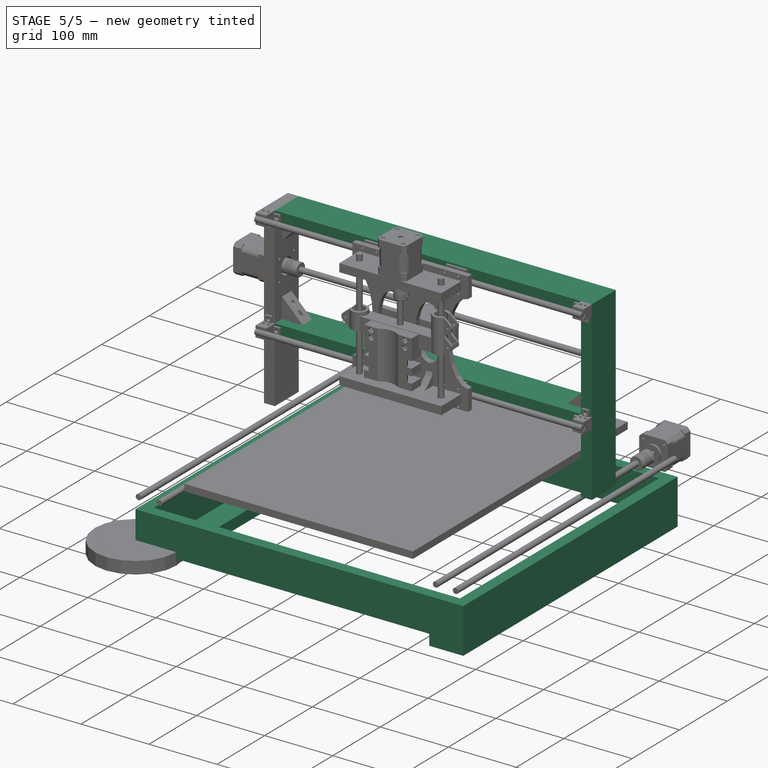
[diagram: stage 5 of 5 — iso view after this stage's code; geometry added in this stage tinted green]
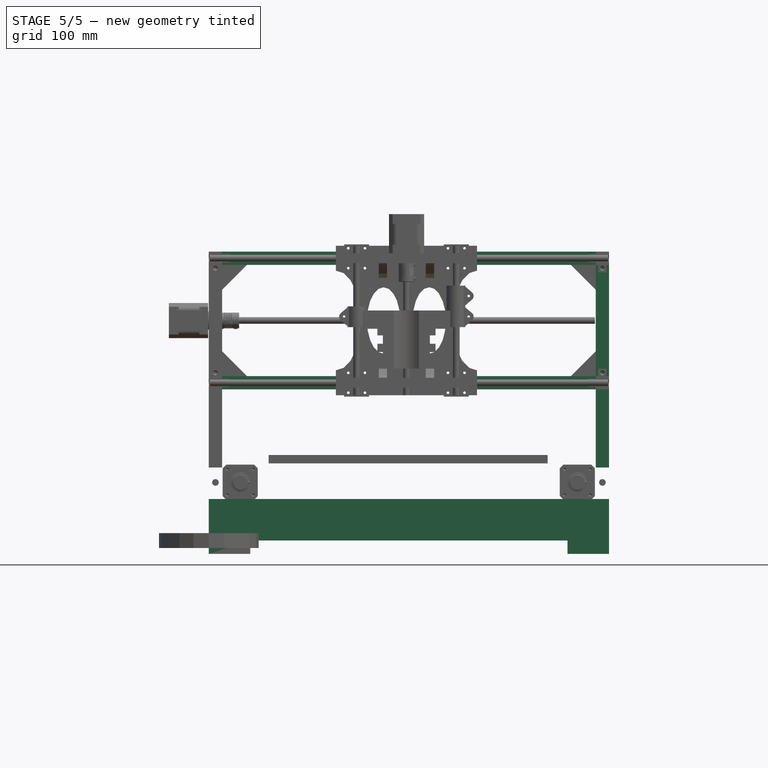
[diagram: stage 5 of 5 — front view after this stage's code; geometry added in this stage tinted green]
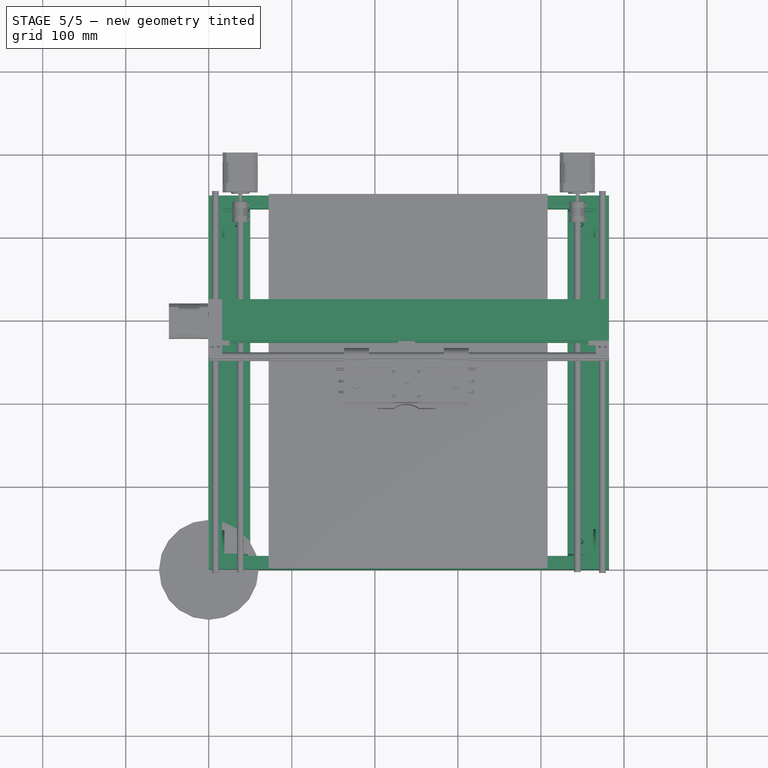
[diagram: stage 5 of 5 — top view after this stage's code; geometry added in this stage tinted green]
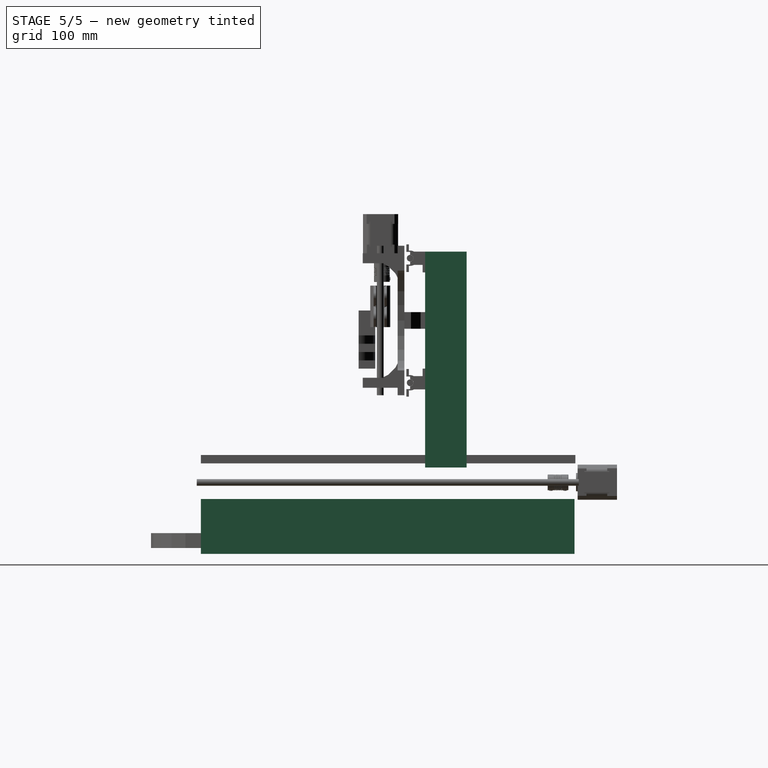
[diagram: stage 5 of 5 — right view after this stage's code; geometry added in this stage tinted green]
FEATURE [Part::Box] Box  label="fusta 001"
  Height = 16
  Length = 450
  Placement = pos=(16,16,0) rot=(1,0,0;1.5708rad)
  Width = 50
FEATURE [Part::Box] Box001  label="fusta 002"
  Height = 16
  Length = 450
  Placement = pos=(16,450,0) rot=(1,0,0;1.5708rad)
  Width = 50
FEATURE [Part::Box] Box002  label="fusta 003"
  Height = 16
  Length = 450
  Placement = pos=(0,0,0) rot=(0.57735,0.57735,0.57735;2.0944rad)
  Width = 50
FEATURE [Part::Box] Box003  label="fusta 004"
  Height = 16
  Length = 450
  Placement = pos=(466,0,0) rot=(0.57735,0.57735,0.57735;2.0944rad)
  Width = 50
FEATURE [Part::Box] Box004  label="fusta 005"
  Height = 16
  Length = 450
  Placement = pos=(50,0,-16) rot=(0,0,1;1.5708rad)
  Width = 50
FEATURE [Part::Box] Box005  label="fusta 006"
  Height = 16
  Length = 450
  Placement = pos=(482,0,-16) rot=(0,0,1;1.5708rad)
  Width = 50
FEATURE [Part::Box] Box006  label="fusta 007"
  Height = 16
  Length = 450
  Placement = pos=(16,270,182) rot=(0,0,1;0rad)
  Width = 50
FEATURE [Part::Box] Box007  label="fusta 008"
  Height = 16
  Length = 450
  Placement = pos=(16,270,332) rot=(0,0,1;0rad)
  Width = 50
FEATURE [Part::Box] Box009  label="fusta 010"
  Height = 16
  Length = 260
  Placement = pos=(482,270,88) rot=(0,-1,0;1.5708rad)
  Width = 50
FEATURE [Part::Prism] prism
  Circumradius = 30
  Height = 3
  Polygon = 100
FEATURE [Part::Box] cube001
  Height = 3
  Length = 30
  Placement = pos=(-30,0,0) rot=(0,0,1;0rad)
  Width = 30
FEATURE [Part::Box] cube002
  Height = 3
  Length = 30
  Placement = pos=(-30,-30,0) rot=(0,0,1;0rad)
  Width = 30
FEATURE [Part::Box] cube003
  Height = 3
  Length = 30
  Placement = pos=(0,-30,0) rot=(0,0,1;0rad)
  Width = 30
FEATURE [Part::MultiFuse] union
  Shapes = -> [cube001,cube002,cube003]
FEATURE [Part::Cut] difference
  Base = -> prism
  Tool = -> union
FEATURE [Part::Prism] prism001
  Circumradius = 30
  Height = 3
  Polygon = 100
FEATURE [Part::Box] cube004
  Height = 3
  Length = 30
  Placement = pos=(-30,0,0) rot=(0,0,1;0rad)
  Width = 30
FEATURE [Part::Box] cube005
  Height = 3
  Length = 30
  Placement = pos=(-30,-30,0) rot=(0,0,1;0rad)
  Width = 30
FEATURE [Part::Box] cube006
  Height = 3
  Length = 30
  Placement = pos=(0,-30,0) rot=(0,0,1;0rad)
  Width = 30
FEATURE [Part::MultiFuse] union001
  Shapes = -> [cube004,cube005,cube006]
FEATURE [Part::Cut] difference001
  Base = -> prism001
  Placement = pos=(0,0,0) rot=(1,0,0;1.5708rad)
  Tool = -> union001
FEATURE [Part::Prism] prism002
  Circumradius = 30
  Height = 3
  Polygon = 100
FEATURE [Part::Box] cube007
  Height = 3
  Length = 30
  Placement = pos=(-30,0,0) rot=(0,0,1;0rad)
  Width = 30
FEATURE [Part::Box] cube008
  Height = 3
  Length = 30
  Placement = pos=(-30,-30,0) rot=(0,0,1;0rad)
  Width = 30
FEATURE [Part::Box] cube009
  Height = 3
  Length = 30
  Placement = pos=(0,-30,0) rot=(0,0,1;0rad)
  Width = 30
FEATURE [Part::MultiFuse] union002
  Shapes = -> [cube007,cube008,cube009]
FEATURE [Part::Cut] difference002
  Base = -> prism002
  Placement = pos=(0,0,0) rot=(0,-1,0;1.5708rad)
  Tool = -> union002
FEATURE [Part::Box] cube010
  Height = 30
  Length = 3
  Placement = pos=(-3,-3,0) rot=(0,0,1;0rad)
  Width = 3
FEATURE [Part::MultiFuse] union003
  Shapes = -> [difference,difference001,difference002,cube010]
FEATURE [Part::FeaturePython] frustum  # WARN: FeaturePython — macro-defined, semantics opaque (R4)
  FacesNumber = 100
  Height = 3.2
  Placement = pos=(15,15,0) rot=(0,0,1;0rad)
  Radius1 = 1.5
  Radius2 = 3.5
FEATURE [Part::FeaturePython] frustum001  # WARN: FeaturePython — macro-defined, semantics opaque (R4)
  FacesNumber = 100
  Height = 3.2
  Placement = pos=(-3,15,15) rot=(0,1,0;1.5708rad)
  Radius1 = 1.5
  Radius2 = 3.5
FEATURE [Part::FeaturePython] frustum002  # WARN: FeaturePython — macro-defined, semantics opaque (R4)
  FacesNumber = 100
  Height = 3.2
  Placement = pos=(15,-3,15) rot=(-1,0,0;1.5708rad)
  Radius1 = 1.5
  Radius2 = 3.5
FEATURE [Part::MultiFuse] union004
  Shapes = -> [frustum,frustum001,frustum002]
FEATURE [Part::Cut] difference003  label="CantoneraCNC 001"
  Base = -> union003
  Placement = pos=(463,431,0) rot=(0,0,1;3.14159rad)
  Tool = -> union004
FEATURE [Part::Prism] prism003
  Circumradius = 30
  Height = 3
  Polygon = 100
FEATURE [Part::Box] cube011
  Height = 3
  Length = 30
  Placement = pos=(-30,0,0) rot=(0,0,1;0rad)
  Width = 30
FEATURE [Part::Box] cube012
  Height = 3
  Length = 30
  Placement = pos=(-30,-30,0) rot=(0,0,1;0rad)
  Width = 30
FEATURE [Part::Box] cube013
  Height = 3
  Length = 30
  Placement = pos=(0,-30,0) rot=(0,0,1;0rad)
  Width = 30
FEATURE [Part::MultiFuse] union005
  Shapes = -> [cube011,cube012,cube013]
FEATURE [Part::Cut] difference004
  Base = -> prism003
  Tool = -> union005
FEATURE [Part::Prism] prism004
  Circumradius = 30
  Height = 3
  Polygon = 100
FEATURE [Part::Box] cube014
  Height = 3
  Length = 30
  Placement = pos=(-30,0,0) rot=(0,0,1;0rad)
  Width = 30
FEATURE [Part::Box] cube015
  Height = 3
  Length = 30
  Placement = pos=(-30,-30,0) rot=(0,0,1;0rad)
  Width = 30
FEATURE [Part::Box] cube016
  Height = 3
  Length = 30
  Placement = pos=(0,-30,0) rot=(0,0,1;0rad)
  Width = 30
FEATURE [Part::MultiFuse] union006
  Shapes = -> [cube014,cube015,cube016]
FEATURE [Part::Cut] difference005
  Base = -> prism004
  Placement = pos=(0,0,0) rot=(1,0,0;1.5708rad)
  Tool = -> union006
FEATURE [Part::Prism] prism005
  Circumradius = 30
  Height = 3
  Polygon = 100
FEATURE [Part::Box] cube017
  Height = 3
  Length = 30
  Placement = pos=(-30,0,0) rot=(0,0,1;0rad)
  Width = 30
FEATURE [Part::Box] cube018
  Height = 3
  Length = 30
  Placement = pos=(-30,-30,0) rot=(0,0,1;0rad)
  Width = 30
FEATURE [Part::Box] cube019
  Height = 3
  Length = 30
  Placement = pos=(0,-30,0) rot=(0,0,1;0rad)
  Width = 30
FEATURE [Part::MultiFuse] union007
  Shapes = -> [cube017,cube018,cube019]
FEATURE [Part::Cut] difference006
  Base = -> prism005
  Placement = pos=(0,0,0) rot=(0,-1,0;1.5708rad)
  Tool = -> union007
FEATURE [Part::Box] cube020
  Height = 30
  Length = 3
  Placement = pos=(-3,-3,0) rot=(0,0,1;0rad)
  Width = 3
FEATURE [Part::MultiFuse] union008
  Shapes = -> [difference004,difference005,difference006,cube020]
FEATURE [Part::FeaturePython] frustum003  # WARN: FeaturePython — macro-defined, semantics opaque (R4)
  FacesNumber = 100
  Height = 3.2
  Placement = pos=(15,15,0) rot=(0,0,1;0rad)
  Radius1 = 1.5
  Radius2 = 3.5
FEATURE [Part::FeaturePython] frustum004  # WARN: FeaturePython — macro-defined, semantics opaque (R4)
  FacesNumber = 100
  Height = 3.2
  Placement = pos=(-3,15,15) rot=(0,1,0;1.5708rad)
  Radius1 = 1.5
  Radius2 = 3.5
FEATURE [Part::FeaturePython] frustum005  # WARN: FeaturePython — macro-defined, semantics opaque (R4)
  FacesNumber = 100
  Height = 3.2
  Placement = pos=(15,-3,15) rot=(-1,0,0;1.5708rad)
  Radius1 = 1.5
  Radius2 = 3.5
FEATURE [Part::MultiFuse] union009
  Shapes = -> [frustum003,frustum004,frustum005]
FEATURE [Part::Cut] difference007  label="CantoneraCNC 002"
  Base = -> union008
  Placement = pos=(463,19,0) rot=(0,0,1;1.5708rad)
  Tool = -> union009
FEATURE [Part::Prism] prism006
  Circumradius = 30
  Height = 3
  Polygon = 100
FEATURE [Part::Box] cube021
  Height = 3
  Length = 30
  Placement = pos=(-30,0,0) rot=(0,0,1;0rad)
  Width = 30
FEATURE [Part::Box] cube022
  Height = 3
  Length = 30
  Placement = pos=(-30,-30,0) rot=(0,0,1;0rad)
  Width = 30
FEATURE [Part::Box] cube023
  Height = 3
  Length = 30
  Placement = pos=(0,-30,0) rot=(0,0,1;0rad)
  Width = 30
FEATURE [Part::MultiFuse] union010
  Shapes = -> [cube021,cube022,cube023]
FEATURE [Part::Cut] difference008
  Base = -> prism006
  Tool = -> union010
FEATURE [Part::Prism] prism007
  Circumradius = 30
  Height = 3
  Polygon = 100
FEATURE [Part::Box] cube024
  Height = 3
  Length = 30
  Placement = pos=(-30,0,0) rot=(0,0,1;0rad)
  Width = 30
FEATURE [Part::Box] cube025
  Height = 3
  Length = 30
  Placement = pos=(-30,-30,0) rot=(0,0,1;0rad)
  Width = 30
FEATURE [Part::Box] cube026
  Height = 3
  Length = 30
  Placement = pos=(0,-30,0) rot=(0,0,1;0rad)
  Width = 30
FEATURE [Part::MultiFuse] union011
  Shapes = -> [cube024,cube025,cube026]
FEATURE [Part::Cut] difference009
  Base = -> prism007
  Placement = pos=(0,0,0) rot=(1,0,0;1.5708rad)
  Tool = -> union011
FEATURE [Part::Prism] prism008
  Circumradius = 30
  Height = 3
  Polygon = 100
FEATURE [Part::Box] cube027
  Height = 3
  Length = 30
  Placement = pos=(-30,0,0) rot=(0,0,1;0rad)
  Width = 30
FEATURE [Part::Box] cube028
  Height = 3
  Length = 30
  Placement = pos=(-30,-30,0) rot=(0,0,1;0rad)
  Width = 30
FEATURE [Part::Box] cube029
  Height = 3
  Length = 30
  Placement = pos=(0,-30,0) rot=(0,0,1;0rad)
  Width = 30
FEATURE [Part::MultiFuse] union012
  Shapes = -> [cube027,cube028,cube029]
FEATURE [Part::Cut] difference010
  Base = -> prism008
  Placement = pos=(0,0,0) rot=(0,-1,0;1.5708rad)
  Tool = -> union012
FEATURE [Part::Box] cube030
  Height = 30
  Length = 3
  Placement = pos=(-3,-3,0) rot=(0,0,1;0rad)
  Width = 3
FEATURE [Part::MultiFuse] union013
  Shapes = -> [difference008,difference009,difference010,cube030]
FEATURE [Part::FeaturePython] frustum006  # WARN: FeaturePython — macro-defined, semantics opaque (R4)
  FacesNumber = 100
  Height = 3.2
  Placement = pos=(15,15,0) rot=(0,0,1;0rad)
  Radius1 = 1.5
  Radius2 = 3.5
FEATURE [Part::FeaturePython] frustum007  # WARN: FeaturePython — macro-defined, semantics opaque (R4)
  FacesNumber = 100
  Height = 3.2
  Placement = pos=(-3,15,15) rot=(0,1,0;1.5708rad)
  Radius1 = 1.5
  Radius2 = 3.5
FEATURE [Part::FeaturePython] frustum008  # WARN: FeaturePython — macro-defined, semantics opaque (R4)
  FacesNumber = 100
  Height = 3.2
  Placement = pos=(15,-3,15) rot=(-1,0,0;1.5708rad)
  Radius1 = 1.5
  Radius2 = 3.5
FEATURE [Part::MultiFuse] union014
  Shapes = -> [frustum006,frustum007,frustum008]
FEATURE [Part::Cut] difference011  label="CantoneraCNC 003"
  Base = -> union013
  Placement = pos=(19,19,0) rot=(0,0,1;0rad)
  Tool = -> union014
FEATURE [Part::Prism] prism009
  Circumradius = 30
  Height = 3
  Polygon = 100
FEATURE [Part::Box] cube031
  Height = 3
  Length = 30
  Placement = pos=(-30,0,0) rot=(0,0,1;0rad)
  Width = 30
FEATURE [Part::Box] cube032
  Height = 3
  Length = 30
  Placement = pos=(-30,-30,0) rot=(0,0,1;0rad)
  Width = 30
FEATURE [Part::Box] cube033
  Height = 3
  Length = 30
  Placement = pos=(0,-30,0) rot=(0,0,1;0rad)
  Width = 30
FEATURE [Part::MultiFuse] union015
  Shapes = -> [cube031,cube032,cube033]
FEATURE [Part::Cut] difference012
  Base = -> prism009
  Tool = -> union015
FEATURE [Part::Cut] difference013
  Base = -> prism010
  Placement = pos=(0,0,0) rot=(1,0,0;1.5708rad)
  Tool = -> union016
FEATURE [Part::MultiFuse] union018
  Shapes = -> [difference012,difference013,difference014,cube040]
FEATURE [Part::Cut] difference015  label="CantoneraCNC 004"
  Base = -> union018
  Placement = pos=(19,431,0) rot=(0,0,-1;1.5708rad)
  Tool = -> union019
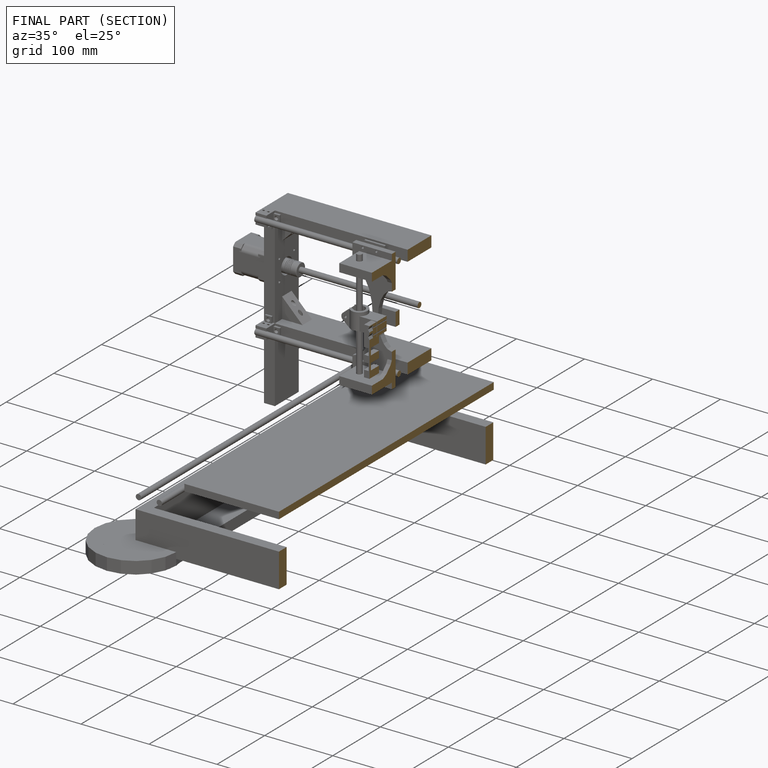
[diagram: finished part — half-section view (interior)]
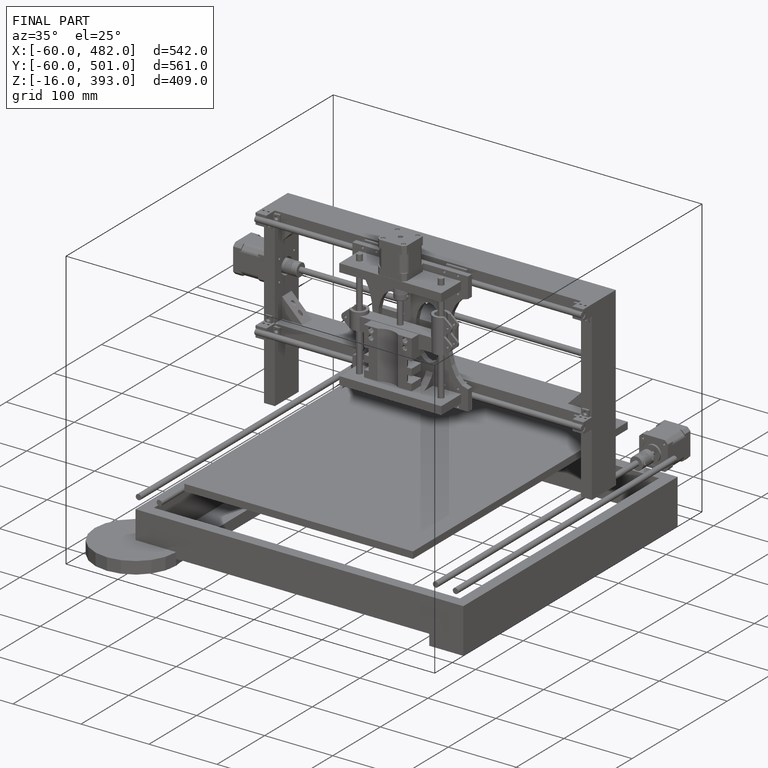
[diagram: finished part — iso view with bounding-box wireframe]
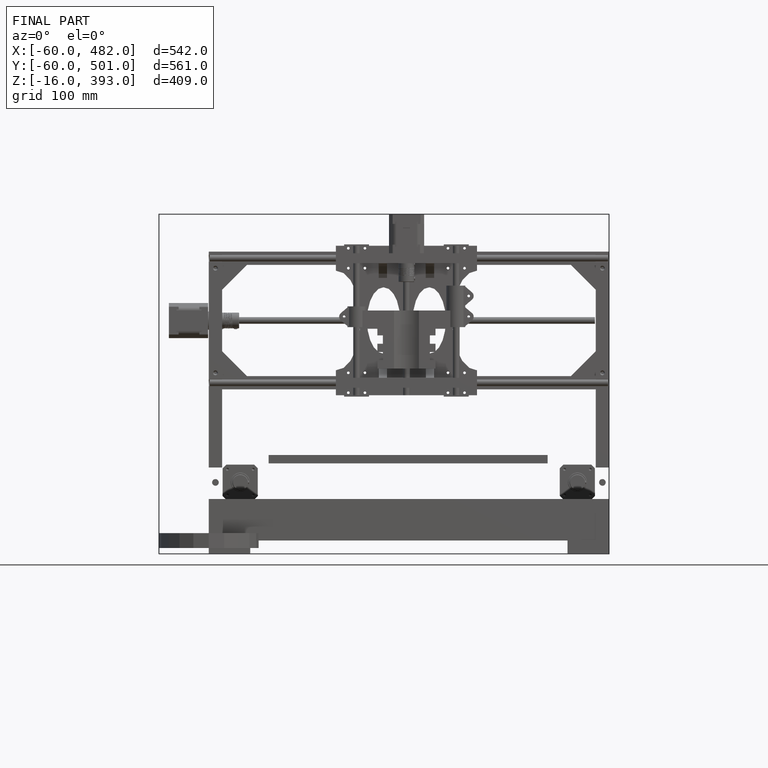
[diagram: finished part — front view with bounding-box wireframe]
